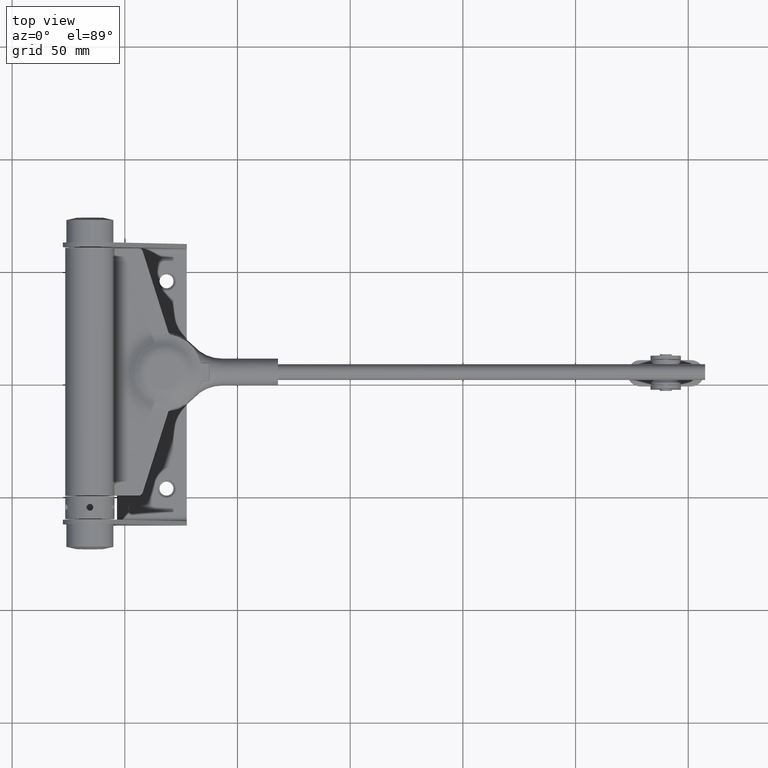
[diagram: clean part render]
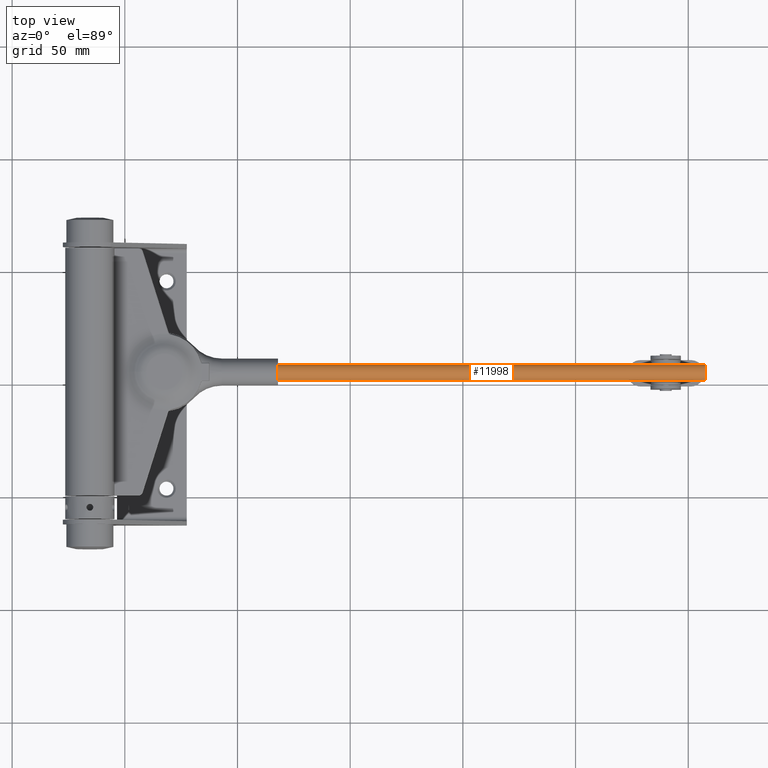
[diagram: same view with one face highlighted and labeled with its STEP entity id]
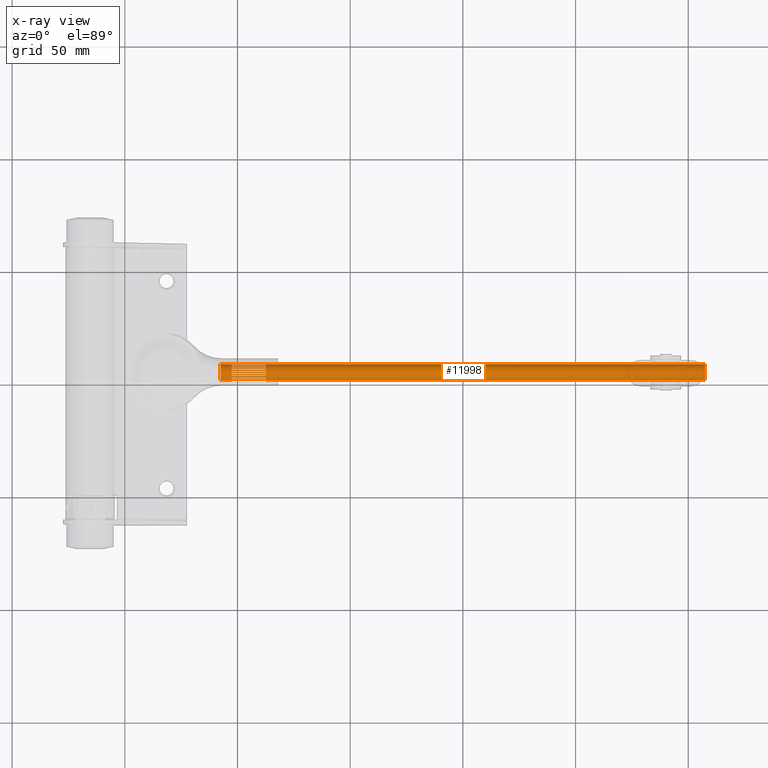
[diagram: x-ray of the same camera — body ghosted, the highlighted face saturated]
A machine part, top view. The second image highlights one B-rep face of the part: STEP entity #11998.
The next image is the same camera in x-ray: the body ghosted, the highlighted face saturated — about 0% of this face is hidden behind the body in this view.
In plain terms, the highlighted cylindrical surface (bore or boss wall) has radius 3.5 mm, axis along (-1, -0, -0).
Its self-contained STEP definition (entity closure, byte-faithful):
#15 = EDGE_CURVE ( 'NONE', #11448, #12690, #16487, .T. ) ;
#62 = LINE ( 'NONE', #4453, #2314 ) ;
#64 = CARTESIAN_POINT ( 'NONE',  ( 0.000000000000000000, 0.000000000000000000, -87.40000000000082991 ) ) ;
#102 = CIRCLE ( 'NONE', #21626, 3.500000000000047073 ) ;
#145 = FACE_BOUND ( 'NONE', #22399, .T. ) ;
#192 = EDGE_LOOP ( 'NONE', ( #1691, #347, #5508, #10158 ) ) ;
#209 = CARTESIAN_POINT ( 'NONE',  ( 3.467335518815707562, -0.4770580677017606797, -87.40000000000082991 ) ) ;
#284 = CIRCLE ( 'NONE', #7661, 3.500000000000047073 ) ;
#302 = CIRCLE ( 'NONE', #23208, 3.500000000000047073 ) ;
#303 = CARTESIAN_POINT ( 'NONE',  ( 0.2584009039698839660, -3.490448248123377173, -87.50000000000082423 ) ) ;
#318 = DIRECTION ( 'NONE',  ( -1.000000000000000000, -6.572520305780989828E-14, 0.000000000000000000 ) ) ;
#339 = VERTEX_POINT ( 'NONE', #21896 ) ;
#347 = ORIENTED_EDGE ( 'NONE', *, *, #483, .T. ) ;
#421 = VECTOR ( 'NONE', #13515, 1000.000000000000000 ) ;
#429 = CIRCLE ( 'NONE', #21882, 3.500000000000047073 ) ;
#446 = CARTESIAN_POINT ( 'NONE',  ( -3.085541056604097054, -1.652100598635302120, -102.6000000000010459 ) ) ;
#483 = EDGE_CURVE ( 'NONE', #10477, #1351, #1466, .T. ) ;
#514 = LINE ( 'NONE', #8953, #11162 ) ;
#577 = AXIS2_PLACEMENT_3D ( 'NONE', #616, #4272, #18811 ) ;
#580 = ORIENTED_EDGE ( 'NONE', *, *, #6989, .F. ) ;
#616 = CARTESIAN_POINT ( 'NONE',  ( 0.000000000000000000, 0.000000000000000000, -102.6000000000010459 ) ) ;
#650 = CARTESIAN_POINT ( 'NONE',  ( -3.239763280480197682, -1.324361690193493146, -87.50000000000082423 ) ) ;
#729 = CARTESIAN_POINT ( 'NONE',  ( 1.118321945386264282, -3.316527706271678699, -102.6000000000010459 ) ) ;
#766 = DIRECTION ( 'NONE',  ( -2.465190328815629049E-32, -3.875939235900051466E-29, -1.000000000000000000 ) ) ;
#778 = CIRCLE ( 'NONE', #1356, 3.500000000000047073 ) ;
#800 = DIRECTION ( 'NONE',  ( -2.465190328815629049E-32, -3.875939235900051466E-29, -1.000000000000000000 ) ) ;
#842 = VERTEX_POINT ( 'NONE', #22971 ) ;
#858 = DIRECTION ( 'NONE',  ( 2.465190328815629049E-32, 3.875939235900051466E-29, 1.000000000000000000 ) ) ;
#875 = CARTESIAN_POINT ( 'NONE',  ( -2.854147533565758899, 2.025794129876111516, -87.40000000000082991 ) ) ;
#961 = VERTEX_POINT ( 'NONE', #12146 ) ;
#967 = EDGE_CURVE ( 'NONE', #11366, #9857, #23385, .T. ) ;
#1033 = CARTESIAN_POINT ( 'NONE',  ( 3.500000000000150990, -8.559140821647978089E-28, -107.5000000000012506 ) ) ;
#1037 = AXIS2_PLACEMENT_3D ( 'NONE', #2224, #11262, #16719 ) ;
#1045 = CARTESIAN_POINT ( 'NONE',  ( 3.085541056604110821, -1.652100598635272588, -87.50000000000082423 ) ) ;
#1074 = EDGE_LOOP ( 'NONE', ( #2588, #12299, #7090, #18878 ) ) ;
#1077 = CIRCLE ( 'NONE', #8849, 3.500000000000047073 ) ;
#1111 = CARTESIAN_POINT ( 'NONE',  ( -2.201010094355342783, -2.721314859501912764, -87.50000000000082423 ) ) ;
#1133 = CARTESIAN_POINT ( 'NONE',  ( -2.260684726810489042, 2.671947710185519131, -102.6000000000010459 ) ) ;
#1160 = CARTESIAN_POINT ( 'NONE',  ( 2.854147533565824624, 2.025794129876150595, -102.6000000000012591 ) ) ;
#1161 = VERTEX_POINT ( 'NONE', #22805 ) ;
#1163 = CIRCLE ( 'NONE', #20777, 3.500000000000047073 ) ;
#1193 = DIRECTION ( 'NONE',  ( -2.465190328815629049E-32, -3.875939235900051466E-29, -1.000000000000000000 ) ) ;
#1236 = CARTESIAN_POINT ( 'NONE',  ( -0.2584009039698319521, -3.490448248123393604, -102.6000000000010459 ) ) ;
#1254 = VECTOR ( 'NONE', #14854, 1000.000000000000000 ) ;
#1260 = EDGE_LOOP ( 'NONE', ( #2819, #15144, #14358, #2831 ) ) ;
#1271 = DIRECTION ( 'NONE',  ( 2.465190328815629049E-32, 3.875939235900051466E-29, 1.000000000000000000 ) ) ;
#1318 = DIRECTION ( 'NONE',  ( -1.000000000000000000, -1.278976924368194723E-13, 0.000000000000000000 ) ) ;
#1351 = VERTEX_POINT ( 'NONE', #19495 ) ;
#1356 = AXIS2_PLACEMENT_3D ( 'NONE', #16991, #18860, #11206 ) ;
#1374 = EDGE_LOOP ( 'NONE', ( #13788, #12170, #10793, #5454 ) ) ;
#1392 = CIRCLE ( 'NONE', #22661, 3.500000000000047073 ) ;
#1404 = CARTESIAN_POINT ( 'NONE',  ( 0.000000000000000000, 0.000000000000000000, -87.40000000000082991 ) ) ;
#1409 = ORIENTED_EDGE ( 'NONE', *, *, #4310, .T. ) ;
#1429 = VERTEX_POINT ( 'NONE', #21953 ) ;
#1466 = CIRCLE ( 'NONE', #9117, 3.500000000000047073 ) ;
#1470 = CARTESIAN_POINT ( 'NONE',  ( 1.907974706073567450, -2.934217531299224024, -102.6000000000012591 ) ) ;
#1485 = EDGE_LOOP ( 'NONE', ( #7259, #19575, #19936, #2613 ) ) ;
#1489 = DIRECTION ( 'NONE',  ( -1.000000000000000000, 5.595524044110887414E-14, 0.000000000000000000 ) ) ;
#1494 = LINE ( 'NONE', #20947, #8618 ) ;
#1523 = CARTESIAN_POINT ( 'NONE',  ( 1.842583281463670231, 2.975716191250626252, -87.50000000000082423 ) ) ;
#1560 = DIRECTION ( 'NONE',  ( -1.000000000000000000, 2.445468806185103862E-28, 0.000000000000000000 ) ) ;
#1575 = FACE_BOUND ( 'NONE', #13847, .T. ) ;
#1582 = VECTOR ( 'NONE', #14490, 1000.000000000000000 ) ;
#1643 = EDGE_LOOP ( 'NONE', ( #4473 ) ) ;
#1691 = ORIENTED_EDGE ( 'NONE', *, *, #2321, .T. ) ;
#1743 = VERTEX_POINT ( 'NONE', #5448 ) ;
#1780 = VECTOR ( 'NONE', #766, 1000.000000000000000 ) ;
#1796 = AXIS2_PLACEMENT_3D ( 'NONE', #20846, #6282, #18773 ) ;
#1818 = CARTESIAN_POINT ( 'NONE',  ( 0.000000000000000000, 0.000000000000000000, -102.6000000000010459 ) ) ;
#1860 = ORIENTED_EDGE ( 'NONE', *, *, #2547, .F. ) ;
#1877 = VERTEX_POINT ( 'NONE', #446 ) ;
#1883 = CARTESIAN_POINT ( 'NONE',  ( -3.085541056603993137, -1.652100598635302120, -87.40000000000082991 ) ) ;
#1893 = ORIENTED_EDGE ( 'NONE', *, *, #18761, .T. ) ;
#1931 = VECTOR ( 'NONE', #21520, 1000.000000000000000 ) ;
#1938 = CARTESIAN_POINT ( 'NONE',  ( -3.399463821857268364, -0.8328539631193226933, -87.40000000000082991 ) ) ;
#1970 = DIRECTION ( 'NONE',  ( -2.465190328815629049E-32, -3.875939235900051466E-29, -1.000000000000000000 ) ) ;
#1994 = EDGE_LOOP ( 'NONE', ( #17695, #12008, #16363, #2673 ) ) ;
#1995 = VERTEX_POINT ( 'NONE', #9567 ) ;
#1999 = DIRECTION ( 'NONE',  ( -2.465190328815629049E-32, -3.875939235900051466E-29, -1.000000000000000000 ) ) ;
#2007 = EDGE_CURVE ( 'NONE', #22257, #14265, #9141, .T. ) ;
#2020 = CARTESIAN_POINT ( 'NONE',  ( 3.239763280480270513, -1.324361690193447627, -102.6000000000012591 ) ) ;
#2054 = LINE ( 'NONE', #8833, #13078 ) ;
#2059 = DIRECTION ( 'NONE',  ( -2.465190328815629049E-32, -3.875939235900051466E-29, -1.000000000000000000 ) ) ;
#2083 = CIRCLE ( 'NONE', #15297, 3.500000000000047073 ) ;
#2108 = VECTOR ( 'NONE', #15409, 1000.000000000000000 ) ;
#2174 = DIRECTION ( 'NONE',  ( -1.000000000000000000, 6.039613253960955078E-14, 0.000000000000000000 ) ) ;
#2224 = CARTESIAN_POINT ( 'NONE',  ( 0.000000000000000000, 0.000000000000000000, -102.6000000000010459 ) ) ;
#2250 = VECTOR ( 'NONE', #21749, 1000.000000000000000 ) ;
#2290 = EDGE_CURVE ( 'NONE', #11684, #1877, #14819, .T. ) ;
#2314 = VECTOR ( 'NONE', #17537, 1000.000000000000000 ) ;
#2320 = EDGE_CURVE ( 'NONE', #16935, #5998, #16812, .T. ) ;
#2321 = EDGE_CURVE ( 'NONE', #16702, #10477, #22274, .T. ) ;
#2477 = ORIENTED_EDGE ( 'NONE', *, *, #21365, .T. ) ;
#2483 = DIRECTION ( 'NONE',  ( 2.465190328815629049E-32, 3.875939235900051466E-29, 1.000000000000000000 ) ) ;
#2502 = CARTESIAN_POINT ( 'NONE',  ( 2.524725663239499873, 2.423996766784171086, -87.50000000000082423 ) ) ;
#2507 = ORIENTED_EDGE ( 'NONE', *, *, #23365, .F. ) ;
#2518 = CARTESIAN_POINT ( 'NONE',  ( 1.455097829517248975, -3.183188701056596237, -87.40000000000082991 ) ) ;
#2543 = EDGE_CURVE ( 'NONE', #10635, #22257, #12663, .T. ) ;
#2547 = EDGE_CURVE ( 'NONE', #5993, #8328, #17244, .T. ) ;
#2560 = CARTESIAN_POINT ( 'NONE',  ( -2.854147533565710493, 2.025794129876111516, -102.6000000000010459 ) ) ;
#2572 = VERTEX_POINT ( 'NONE', #6798 ) ;
#2588 = ORIENTED_EDGE ( 'NONE', *, *, #14209, .T. ) ;
#2613 = ORIENTED_EDGE ( 'NONE', *, *, #20827, .T. ) ;
#2661 = ORIENTED_EDGE ( 'NONE', *, *, #5530, .T. ) ;
#2673 = ORIENTED_EDGE ( 'NONE', *, *, #7023, .T. ) ;
#2684 = CIRCLE ( 'NONE', #10118, 3.500000000000047073 ) ;
#2730 = VECTOR ( 'NONE', #8713, 1000.000000000000000 ) ;
#2752 = CARTESIAN_POINT ( 'NONE',  ( 1.842583281463670231, 2.975716191250626252, -87.40000000000082991 ) ) ;
#2767 = DIRECTION ( 'NONE',  ( -1.000000000000000000, 2.445468806185103862E-28, 0.000000000000000000 ) ) ;
#2819 = ORIENTED_EDGE ( 'NONE', *, *, #9056, .T. ) ;
#2831 = ORIENTED_EDGE ( 'NONE', *, *, #8584, .T. ) ;
#2851 = VERTEX_POINT ( 'NONE', #14341 ) ;
#2879 = EDGE_LOOP ( 'NONE', ( #7551, #17017, #16985, #7626 ) ) ;
#2943 = CARTESIAN_POINT ( 'NONE',  ( 3.085541056604110821, -1.652100598635272588, -87.40000000000082991 ) ) ;
#2955 = DIRECTION ( 'NONE',  ( -1.000000000000000000, -5.506706202140824403E-14, 0.000000000000000000 ) ) ;
#2981 = DIRECTION ( 'NONE',  ( -1.000000000000000000, 5.329070518200846057E-14, 0.000000000000000000 ) ) ;
#2989 = CIRCLE ( 'NONE', #22881, 3.500000000000047073 ) ;
#2994 = DIRECTION ( 'NONE',  ( -2.465190328815629049E-32, -3.875939235900051466E-29, -1.000000000000000000 ) ) ;
#3012 = AXIS2_PLACEMENT_3D ( 'NONE', #17763, #14074, #23028 ) ;
#3037 = VECTOR ( 'NONE', #6493, 1000.000000000000000 ) ;
#3068 = CARTESIAN_POINT ( 'NONE',  ( -3.048230246302605639, 1.719968710624101726, -102.6000000000010459 ) ) ;
#3074 = VERTEX_POINT ( 'NONE', #11081 ) ;
#3082 = EDGE_CURVE ( 'NONE', #22468, #18417, #14282, .T. ) ;
#3108 = CARTESIAN_POINT ( 'NONE',  ( 2.201010094355432933, -2.721314859501879901, -102.6000000000012591 ) ) ;
#3142 = VERTEX_POINT ( 'NONE', #16055 ) ;
#3147 = CARTESIAN_POINT ( 'NONE',  ( 2.524725663239499873, 2.423996766784171086, -102.6000000000012591 ) ) ;
#3170 = DIRECTION ( 'NONE',  ( -2.465190328815629049E-32, -3.875939235900051466E-29, -1.000000000000000000 ) ) ;
#3181 = CARTESIAN_POINT ( 'NONE',  ( 0.1811058298647159892, 3.495311241991049478, -102.6000000000010459 ) ) ;
#3195 = CARTESIAN_POINT ( 'NONE',  ( -1.455097829517155272, -3.183188701056617109, -87.50000000000082423 ) ) ;
#3202 = ORIENTED_EDGE ( 'NONE', *, *, #9872, .T. ) ;
#3203 = LINE ( 'NONE', #18424, #20018 ) ;
#3221 = CARTESIAN_POINT ( 'NONE',  ( 0.000000000000000000, 0.000000000000000000, 107.5000000000016485 ) ) ;
#3257 = DIRECTION ( 'NONE',  ( -2.465190328815629049E-32, -3.875939235900051466E-29, -1.000000000000000000 ) ) ;
#3287 = DIRECTION ( 'NONE',  ( 2.465190328815629049E-32, 3.875939235900051466E-29, 1.000000000000000000 ) ) ;
#3343 = VECTOR ( 'NONE', #7677, 1000.000000000000000 ) ;
#3378 = DIRECTION ( 'NONE',  ( -2.465190328815629049E-32, -3.875939235900051466E-29, -1.000000000000000000 ) ) ;
#3384 = CARTESIAN_POINT ( 'NONE',  ( 0.6177564165749729330, -3.445051089574797221, -87.40000000000082991 ) ) ;
#3395 = DIRECTION ( 'NONE',  ( -1.000000000000000000, 2.445468806185103862E-28, 0.000000000000000000 ) ) ;
#3400 = CARTESIAN_POINT ( 'NONE',  ( 0.000000000000000000, 0.000000000000000000, -87.40000000000082991 ) ) ;
#3416 = CARTESIAN_POINT ( 'NONE',  ( -3.380203312383877279, 0.9078686947731349210, -102.6000000000010459 ) ) ;
#3462 = ORIENTED_EDGE ( 'NONE', *, *, #3082, .T. ) ;
#3520 = CIRCLE ( 'NONE', #5926, 3.500000000000047073 ) ;
#3579 = EDGE_LOOP ( 'NONE', ( #19461, #4346, #1860, #11419 ) ) ;
#3583 = CIRCLE ( 'NONE', #12950, 3.500000000000047073 ) ;
#3599 = CIRCLE ( 'NONE', #12845, 3.500000000000047073 ) ;
#3762 = DIRECTION ( 'NONE',  ( 2.465190328815629049E-32, 3.875939235900051466E-29, 1.000000000000000000 ) ) ;
#3794 = VERTEX_POINT ( 'NONE', #20401 ) ;
#3808 = FACE_BOUND ( 'NONE', #1260, .T. ) ;
#3825 = ORIENTED_EDGE ( 'NONE', *, *, #14045, .T. ) ;
#3857 = CARTESIAN_POINT ( 'NONE',  ( -0.6177564165749209746, -3.445051089574806102, -87.40000000000082991 ) ) ;
#3885 = VERTEX_POINT ( 'NONE', #5828 ) ;
#3890 = CARTESIAN_POINT ( 'NONE',  ( -2.808624800216295014, -2.088450797028739814, -102.6000000000010459 ) ) ;
#3898 = DIRECTION ( 'NONE',  ( -1.000000000000000000, 2.445468806185103862E-28, 0.000000000000000000 ) ) ;
#3930 = CARTESIAN_POINT ( 'NONE',  ( -0.2584009039698319521, -3.490448248123393604, -87.50000000000082423 ) ) ;
#3969 = CIRCLE ( 'NONE', #21984, 3.500000000000047073 ) ;
#3973 = CARTESIAN_POINT ( 'NONE',  ( -3.477042314535893297, 0.4002208676804133725, -87.40000000000082991 ) ) ;
#4058 = CIRCLE ( 'NONE', #15152, 3.500000000000047073 ) ;
#4062 = ORIENTED_EDGE ( 'NONE', *, *, #19859, .T. ) ;
#4066 = VECTOR ( 'NONE', #22797, 1000.000000000000000 ) ;
#4072 = CARTESIAN_POINT ( 'NONE',  ( 3.399463821857386048, -0.8328539631192628523, -102.6000000000012591 ) ) ;
#4106 = CARTESIAN_POINT ( 'NONE',  ( 0.6177564165749729330, -3.445051089574797221, -102.6000000000010459 ) ) ;
#4138 = DIRECTION ( 'NONE',  ( -2.465190328815629049E-32, -3.875939235900051466E-29, -1.000000000000000000 ) ) ;
#4165 = EDGE_CURVE ( 'NONE', #7416, #22919, #8217, .T. ) ;
#4199 = VERTEX_POINT ( 'NONE', #10262 ) ;
#4207 = VERTEX_POINT ( 'NONE', #6703 ) ;
#4244 = CARTESIAN_POINT ( 'NONE',  ( 3.268273753966800754, 1.252352454036956386, -102.6000000000012591 ) ) ;
#4266 = CARTESIAN_POINT ( 'NONE',  ( 0.000000000000000000, 0.000000000000000000, -87.40000000000082991 ) ) ;
#4272 = DIRECTION ( 'NONE',  ( -2.465190328815629049E-32, -3.875939235900051466E-29, -1.000000000000000000 ) ) ;
#4278 = CARTESIAN_POINT ( 'NONE',  ( 0.000000000000000000, 0.000000000000000000, -87.40000000000082991 ) ) ;
#4287 = VERTEX_POINT ( 'NONE', #1470 ) ;
#4291 = CARTESIAN_POINT ( 'NONE',  ( 3.467335518815707562, -0.4770580677017606797, -87.50000000000082423 ) ) ;
#4310 = EDGE_CURVE ( 'NONE', #12080, #18470, #7320, .T. ) ;
#4312 = EDGE_CURVE ( 'NONE', #4412, #4207, #14665, .T. ) ;
#4338 = CARTESIAN_POINT ( 'NONE',  ( 2.201010094355481339, -2.721314859501879901, -87.50000000000082423 ) ) ;
#4346 = ORIENTED_EDGE ( 'NONE', *, *, #11715, .T. ) ;
#4366 = VERTEX_POINT ( 'NONE', #12902 ) ;
#4376 = ORIENTED_EDGE ( 'NONE', *, *, #2290, .T. ) ;
#4393 = FACE_BOUND ( 'NONE', #3579, .T. ) ;
#4407 = AXIS2_PLACEMENT_3D ( 'NONE', #6958, #10766, #10532 ) ;
#4412 = VERTEX_POINT ( 'NONE', #7160 ) ;
#4424 = VERTEX_POINT ( 'NONE', #21740 ) ;
#4431 = CARTESIAN_POINT ( 'NONE',  ( 2.577742398938251522, -2.367539677538029963, -87.40000000000082991 ) ) ;
#4435 = DIRECTION ( 'NONE',  ( 2.465190328815629049E-32, 3.875939235900051466E-29, 1.000000000000000000 ) ) ;
#4436 = DIRECTION ( 'NONE',  ( -2.465190328815629049E-32, -3.875939235900051466E-29, -1.000000000000000000 ) ) ;
#4453 = CARTESIAN_POINT ( 'NONE',  ( 3.239763280480315810, -1.324361690193447627, -87.50000000000082423 ) ) ;
#4470 = LINE ( 'NONE', #5674, #9308 ) ;
#4473 = ORIENTED_EDGE ( 'NONE', *, *, #23008, .T. ) ;
#4479 = VECTOR ( 'NONE', #6782, 1000.000000000000000 ) ;
#4492 = CARTESIAN_POINT ( 'NONE',  ( -3.085541056603993137, -1.652100598635302120, -87.50000000000082423 ) ) ;
#4516 = CARTESIAN_POINT ( 'NONE',  ( -1.907974706073473747, -2.934217531299251558, -87.50000000000082423 ) ) ;
#4526 = ORIENTED_EDGE ( 'NONE', *, *, #20686, .F. ) ;
#4669 = CARTESIAN_POINT ( 'NONE',  ( 1.040834085586084257E-13, 0.000000000000000000, -107.5000000000012506 ) ) ;
#4673 = FACE_BOUND ( 'NONE', #23164, .T. ) ;
#4699 = ORIENTED_EDGE ( 'NONE', *, *, #11883, .T. ) ;
#4817 = DIRECTION ( 'NONE',  ( -2.465190328815629049E-32, -3.875939235900051466E-29, -1.000000000000000000 ) ) ;
#4831 = DIRECTION ( 'NONE',  ( -2.465190328815629049E-32, -3.875939235900051466E-29, -1.000000000000000000 ) ) ;
#4839 = DIRECTION ( 'NONE',  ( -1.000000000000000000, 2.445468806185103862E-28, 0.000000000000000000 ) ) ;
#4848 = AXIS2_PLACEMENT_3D ( 'NONE', #8629, #12211, #5042 ) ;
#4850 = CARTESIAN_POINT ( 'NONE',  ( 3.500000000000047073, -8.559140821647978089E-28, 107.5000000000016485 ) ) ;
#4865 = AXIS2_PLACEMENT_3D ( 'NONE', #5968, #19017, #9851 ) ;
#4875 = DIRECTION ( 'NONE',  ( 2.465190328815629049E-32, 3.875939235900051466E-29, 1.000000000000000000 ) ) ;
#4904 = CARTESIAN_POINT ( 'NONE',  ( 3.380203312383908809, 0.9078686947731956502, -87.50000000000082423 ) ) ;
#4926 = DIRECTION ( 'NONE',  ( -2.465190328815629049E-32, -3.875939235900051466E-29, -1.000000000000000000 ) ) ;
#4941 = VERTEX_POINT ( 'NONE', #23407 ) ;
#4975 = VECTOR ( 'NONE', #21727, 1000.000000000000000 ) ;
#5006 = CARTESIAN_POINT ( 'NONE',  ( 3.499785772829926866, 0.03872394992213493148, -87.50000000000082423 ) ) ;
#5027 = CIRCLE ( 'NONE', #13628, 3.500000000000047073 ) ;
#5042 = DIRECTION ( 'NONE',  ( 1.000000000000000000, -2.445468806185103862E-28, 0.000000000000000000 ) ) ;
#5063 = CARTESIAN_POINT ( 'NONE',  ( -3.467335518815648499, -0.4770580677018214089, -87.50000000000082423 ) ) ;
#5086 = DIRECTION ( 'NONE',  ( -2.465190328815629049E-32, -3.875939235900051466E-29, -1.000000000000000000 ) ) ;
#5093 = CARTESIAN_POINT ( 'NONE',  ( -2.524725663239486106, 2.423996766784132895, -87.40000000000082991 ) ) ;
#5106 = DIRECTION ( 'NONE',  ( -1.000000000000000000, -2.309263891220331599E-14, 0.000000000000000000 ) ) ;
#5116 = CARTESIAN_POINT ( 'NONE',  ( 3.477042314535938594, 0.4002208676804767107, -87.50000000000082423 ) ) ;
#5135 = LINE ( 'NONE', #5063, #22198 ) ;
#5148 = CARTESIAN_POINT ( 'NONE',  ( -1.118321945386167249, -3.316527706271681364, -102.6000000000010459 ) ) ;
#5165 = DIRECTION ( 'NONE',  ( 2.465190328815629049E-32, 3.875939235900051466E-29, 1.000000000000000000 ) ) ;
#5181 = EDGE_CURVE ( 'NONE', #842, #11432, #16265, .T. ) ;
#5187 = EDGE_CURVE ( 'NONE', #18950, #16035, #2083, .T. ) ;
#5188 = EDGE_LOOP ( 'NONE', ( #3462, #23042, #6765, #17157 ) ) ;
#5226 = VERTEX_POINT ( 'NONE', #4106 ) ;
#5229 = FACE_OUTER_BOUND ( 'NONE', #13916, .T. ) ;
#5243 = LINE ( 'NONE', #4291, #421 ) ;
#5253 = FACE_BOUND ( 'NONE', #11867, .T. ) ;
#5254 = CARTESIAN_POINT ( 'NONE',  ( 2.854147533565776218, 2.025794129876150595, -87.50000000000082423 ) ) ;
#5448 = CARTESIAN_POINT ( 'NONE',  ( 3.467335518815763074, -0.4770580677017606797, -102.6000000000012591 ) ) ;
#5454 = ORIENTED_EDGE ( 'NONE', *, *, #7253, .T. ) ;
#5455 = EDGE_CURVE ( 'NONE', #11154, #16413, #1392, .T. ) ;
#5461 = VERTEX_POINT ( 'NONE', #18066 ) ;
#5497 = CARTESIAN_POINT ( 'NONE',  ( -2.260684726810489042, 2.671947710185519131, -87.50000000000082423 ) ) ;
#5508 = ORIENTED_EDGE ( 'NONE', *, *, #9419, .F. ) ;
#5510 = CARTESIAN_POINT ( 'NONE',  ( 0.000000000000000000, 0.000000000000000000, -102.6000000000010459 ) ) ;
#5530 = EDGE_CURVE ( 'NONE', #23170, #19218, #15257, .T. ) ;
#5592 = VERTEX_POINT ( 'NONE', #17159 ) ;
#5635 = CARTESIAN_POINT ( 'NONE',  ( 0.000000000000000000, 0.000000000000000000, -87.40000000000082991 ) ) ;
#5649 = ORIENTED_EDGE ( 'NONE', *, *, #7427, .T. ) ;
#5674 = CARTESIAN_POINT ( 'NONE',  ( 1.118321945386264282, -3.316527706271678699, -87.50000000000082423 ) ) ;
#5707 = CARTESIAN_POINT ( 'NONE',  ( 3.380203312383908809, 0.9078686947731956502, -87.40000000000082991 ) ) ;
#5739 = CARTESIAN_POINT ( 'NONE',  ( -3.048230246302710000, 1.719968710624101726, -87.40000000000082991 ) ) ;
#5750 = CIRCLE ( 'NONE', #8397, 3.500000000000047073 ) ;
#5786 = FACE_BOUND ( 'NONE', #13930, .T. ) ;
#5828 = CARTESIAN_POINT ( 'NONE',  ( -1.455097829517148389, -3.183188701056617109, -102.6000000000010459 ) ) ;
#5878 = ORIENTED_EDGE ( 'NONE', *, *, #22043, .F. ) ;
#5926 = AXIS2_PLACEMENT_3D ( 'NONE', #20661, #4435, #8093 ) ;
#5927 = CARTESIAN_POINT ( 'NONE',  ( 3.499785772829926866, 0.03872394992213493148, -87.40000000000082991 ) ) ;
#5936 = ORIENTED_EDGE ( 'NONE', *, *, #17512, .T. ) ;
#5937 = EDGE_CURVE ( 'NONE', #14449, #16225, #3599, .T. ) ;
#5968 = CARTESIAN_POINT ( 'NONE',  ( 0.000000000000000000, 0.000000000000000000, -87.40000000000082991 ) ) ;
#5976 = EDGE_CURVE ( 'NONE', #15757, #16702, #20987, .T. ) ;
#5993 = VERTEX_POINT ( 'NONE', #16467 ) ;
#5996 = DIRECTION ( 'NONE',  ( -1.000000000000000000, 1.332267629550229974E-14, 0.000000000000000000 ) ) ;
#5998 = VERTEX_POINT ( 'NONE', #5093 ) ;
#6006 = DIRECTION ( 'NONE',  ( -1.000000000000000000, -3.730349362740549957E-14, 0.000000000000000000 ) ) ;
#6033 = CARTESIAN_POINT ( 'NONE',  ( 1.455097829517248975, -3.183188701056596237, -102.6000000000012591 ) ) ;
#6061 = DIRECTION ( 'NONE',  ( -2.465190328815629049E-32, -3.875939235900051466E-29, -1.000000000000000000 ) ) ;
#6068 = LINE ( 'NONE', #1111, #4066 ) ;
#6082 = CARTESIAN_POINT ( 'NONE',  ( 3.268273753966752349, 1.252352454036956386, -87.50000000000082423 ) ) ;
#6163 = VECTOR ( 'NONE', #6171, 1000.000000000000000 ) ;
#6171 = DIRECTION ( 'NONE',  ( -2.465190328815629049E-32, -3.875939235900051466E-29, -1.000000000000000000 ) ) ;
#6245 = DIRECTION ( 'NONE',  ( -1.000000000000000000, -3.552713678800523017E-14, 0.000000000000000000 ) ) ;
#6278 = DIRECTION ( 'NONE',  ( -1.000000000000000000, 2.445468806185103862E-28, 0.000000000000000000 ) ) ;
#6282 = DIRECTION ( 'NONE',  ( -2.465190328815629049E-32, -3.875939235900051466E-29, -1.000000000000000000 ) ) ;
#6361 = CARTESIAN_POINT ( 'NONE',  ( 0.6938325011875655646, 3.430538800290096724, -102.6000000000010459 ) ) ;
#6393 = FACE_BOUND ( 'NONE', #23128, .T. ) ;
#6421 = CARTESIAN_POINT ( 'NONE',  ( 0.000000000000000000, 0.000000000000000000, -102.6000000000010459 ) ) ;
#6492 = DIRECTION ( 'NONE',  ( -2.465190328815629049E-32, -3.875939235900051466E-29, -1.000000000000000000 ) ) ;
#6493 = DIRECTION ( 'NONE',  ( -2.465190328815629049E-32, -3.875939235900051466E-29, -1.000000000000000000 ) ) ;
#6612 = LINE ( 'NONE', #17755, #6888 ) ;
#6703 = CARTESIAN_POINT ( 'NONE',  ( 2.260684726810499701, 2.671947710185577751, -102.6000000000012591 ) ) ;
#6728 = DIRECTION ( 'NONE',  ( -1.000000000000000000, -5.595524044110838189E-14, 0.000000000000000000 ) ) ;
#6750 = CARTESIAN_POINT ( 'NONE',  ( 3.085541056604065968, -1.652100598635272588, -102.6000000000012591 ) ) ;
#6765 = ORIENTED_EDGE ( 'NONE', *, *, #18654, .F. ) ;
#6782 = DIRECTION ( 'NONE',  ( -2.465190328815629049E-32, -3.875939235900051466E-29, -1.000000000000000000 ) ) ;
#6798 = CARTESIAN_POINT ( 'NONE',  ( -1.455097829517155272, -3.183188701056617109, -87.40000000000082991 ) ) ;
#6821 = VECTOR ( 'NONE', #2994, 1000.000000000000000 ) ;
#6826 = EDGE_CURVE ( 'NONE', #19162, #11787, #21192, .T. ) ;
#6888 = VECTOR ( 'NONE', #4817, 1000.000000000000000 ) ;
#6924 = EDGE_CURVE ( 'NONE', #19218, #1743, #5243, .T. ) ;
#6958 = CARTESIAN_POINT ( 'NONE',  ( 0.000000000000000000, 0.000000000000000000, -102.6000000000010459 ) ) ;
#6959 = VERTEX_POINT ( 'NONE', #875 ) ;
#6970 = DIRECTION ( 'NONE',  ( -2.465190328815629049E-32, -3.875939235900051466E-29, -1.000000000000000000 ) ) ;
#6980 = CARTESIAN_POINT ( 'NONE',  ( 2.808624800216478867, -2.088450797028700290, -87.50000000000082423 ) ) ;
#6989 = EDGE_CURVE ( 'NONE', #11366, #3794, #6068, .T. ) ;
#7023 = EDGE_CURVE ( 'NONE', #16341, #842, #16010, .T. ) ;
#7060 = DIRECTION ( 'NONE',  ( -2.465190328815629049E-32, -3.875939235900051466E-29, -1.000000000000000000 ) ) ;
#7068 = CARTESIAN_POINT ( 'NONE',  ( 2.577742398938251522, -2.367539677538029963, -87.50000000000082423 ) ) ;
#7090 = ORIENTED_EDGE ( 'NONE', *, *, #19931, .F. ) ;
#7106 = ORIENTED_EDGE ( 'NONE', *, *, #8223, .T. ) ;
#7137 = VERTEX_POINT ( 'NONE', #2518 ) ;
#7160 = CARTESIAN_POINT ( 'NONE',  ( 2.260684726810548106, 2.671947710185577751, -87.40000000000082991 ) ) ;
#7173 = CIRCLE ( 'NONE', #4848, 3.500000000000047073 ) ;
#7234 = FACE_BOUND ( 'NONE', #18262, .T. ) ;
#7252 = VECTOR ( 'NONE', #18833, 1000.000000000000000 ) ;
#7253 = EDGE_CURVE ( 'NONE', #2572, #21852, #19538, .T. ) ;
#7259 = ORIENTED_EDGE ( 'NONE', *, *, #18159, .T. ) ;
#7320 = LINE ( 'NONE', #5254, #17548 ) ;
#7379 = LINE ( 'NONE', #4516, #6821 ) ;
#7408 = DIRECTION ( 'NONE',  ( -2.465190328815629049E-32, -3.875939235900051466E-29, -1.000000000000000000 ) ) ;
#7416 = VERTEX_POINT ( 'NONE', #5927 ) ;
#7427 = EDGE_CURVE ( 'NONE', #12652, #15385, #16603, .T. ) ;
#7438 = EDGE_CURVE ( 'NONE', #10732, #11295, #16318, .T. ) ;
#7536 = LINE ( 'NONE', #15218, #17458 ) ;
#7539 = LINE ( 'NONE', #19304, #2108 ) ;
#7541 = CARTESIAN_POINT ( 'NONE',  ( -3.048230246302710000, 1.719968710624101726, -87.50000000000082423 ) ) ;
#7551 = ORIENTED_EDGE ( 'NONE', *, *, #2007, .T. ) ;
#7554 = DIRECTION ( 'NONE',  ( 2.465190328815629049E-32, 3.875939235900051466E-29, 1.000000000000000000 ) ) ;
#7559 = CARTESIAN_POINT ( 'NONE',  ( 0.000000000000000000, 0.000000000000000000, -102.6000000000010459 ) ) ;
#7572 = DIRECTION ( 'NONE',  ( -2.465190328815629049E-32, -3.875939235900051466E-29, -1.000000000000000000 ) ) ;
#7618 = EDGE_CURVE ( 'NONE', #22148, #8029, #8985, .T. ) ;
#7626 = ORIENTED_EDGE ( 'NONE', *, *, #2543, .T. ) ;
#7632 = CARTESIAN_POINT ( 'NONE',  ( 0.000000000000000000, 0.000000000000000000, -87.40000000000082991 ) ) ;
#7649 = VERTEX_POINT ( 'NONE', #3147 ) ;
#7661 = AXIS2_PLACEMENT_3D ( 'NONE', #18957, #2483, #5996 ) ;
#7672 = VERTEX_POINT ( 'NONE', #23199 ) ;
#7677 = DIRECTION ( 'NONE',  ( -2.465190328815629049E-32, -3.875939235900051466E-29, -1.000000000000000000 ) ) ;
#7681 = ORIENTED_EDGE ( 'NONE', *, *, #9163, .F. ) ;
#7712 = CARTESIAN_POINT ( 'NONE',  ( 0.000000000000000000, 0.000000000000000000, -102.6000000000010459 ) ) ;
#7770 = ORIENTED_EDGE ( 'NONE', *, *, #23118, .T. ) ;
#7836 = CARTESIAN_POINT ( 'NONE',  ( -1.525174784452885346, 3.150212989127735952, -102.6000000000010459 ) ) ;
#7872 = LINE ( 'NONE', #4904, #3037 ) ;
#7885 = AXIS2_PLACEMENT_3D ( 'NONE', #1404, #3287, #15975 ) ;
#7893 = AXIS2_PLACEMENT_3D ( 'NONE', #4266, #18969, #17018 ) ;
#7990 = VECTOR ( 'NONE', #11519, 1000.000000000000000 ) ;
#8029 = VERTEX_POINT ( 'NONE', #16820 ) ;
#8043 = VECTOR ( 'NONE', #9362, 1000.000000000000000 ) ;
#8046 = VECTOR ( 'NONE', #10018, 1000.000000000000000 ) ;
#8054 = DIRECTION ( 'NONE',  ( -2.465190328815629049E-32, -3.875939235900051466E-29, -1.000000000000000000 ) ) ;
#8078 = DIRECTION ( 'NONE',  ( 1.000000000000000000, -2.445468806185103862E-28, 0.000000000000000000 ) ) ;
#8093 = DIRECTION ( 'NONE',  ( -1.000000000000000000, 3.286260152890530886E-14, 0.000000000000000000 ) ) ;
#8121 = CIRCLE ( 'NONE', #4407, 3.500000000000047073 ) ;
#8137 = CIRCLE ( 'NONE', #15395, 3.500000000000047073 ) ;
#8143 = EDGE_CURVE ( 'NONE', #10963, #20965, #21316, .T. ) ;
#8161 = CARTESIAN_POINT ( 'NONE',  ( -1.118321945386167249, -3.316527706271681364, -87.40000000000082991 ) ) ;
#8172 = ORIENTED_EDGE ( 'NONE', *, *, #17849, .T. ) ;
#8185 = CARTESIAN_POINT ( 'NONE',  ( 3.048230246302626512, 1.719968710624158126, -87.50000000000082423 ) ) ;
#8217 = CIRCLE ( 'NONE', #17110, 3.500000000000047073 ) ;
#8223 = EDGE_CURVE ( 'NONE', #20588, #19162, #19606, .T. ) ;
#8249 = ORIENTED_EDGE ( 'NONE', *, *, #21115, .T. ) ;
#8328 = VERTEX_POINT ( 'NONE', #7836 ) ;
#8368 = AXIS2_PLACEMENT_3D ( 'NONE', #3400, #10714, #19958 ) ;
#8393 = ORIENTED_EDGE ( 'NONE', *, *, #8858, .F. ) ;
#8397 = AXIS2_PLACEMENT_3D ( 'NONE', #6421, #4436, #10064 ) ;
#8490 = LINE ( 'NONE', #4338, #3343 ) ;
#8584 = EDGE_CURVE ( 'NONE', #6959, #13296, #10472, .T. ) ;
#8601 = DIRECTION ( 'NONE',  ( -2.465190328815629049E-32, -3.875939235900051466E-29, -1.000000000000000000 ) ) ;
#8618 = VECTOR ( 'NONE', #8054, 1000.000000000000000 ) ;
#8629 = CARTESIAN_POINT ( 'NONE',  ( 0.000000000000000000, 0.000000000000000000, 107.5000000000016485 ) ) ;
#8706 = DIRECTION ( 'NONE',  ( -1.000000000000000000, 2.445468806185103862E-28, 0.000000000000000000 ) ) ;
#8713 = DIRECTION ( 'NONE',  ( -2.465190328815629049E-32, -3.875939235900051466E-29, -1.000000000000000000 ) ) ;
#8725 = CARTESIAN_POINT ( 'NONE',  ( -1.525174784452885346, 3.150212989127735952, -87.50000000000082423 ) ) ;
#8756 = AXIS2_PLACEMENT_3D ( 'NONE', #1818, #1970, #11097 ) ;
#8798 = AXIS2_PLACEMENT_3D ( 'NONE', #20815, #858, #17348 ) ;
#8833 = CARTESIAN_POINT ( 'NONE',  ( 0.1811058298648200726, 3.495311241991049478, -87.50000000000082423 ) ) ;
#8849 = AXIS2_PLACEMENT_3D ( 'NONE', #15262, #20811, #6245 ) ;
#8858 = EDGE_CURVE ( 'NONE', #23170, #16189, #11551, .T. ) ;
#8885 = CIRCLE ( 'NONE', #13163, 3.500000000000047073 ) ;
#8911 = CARTESIAN_POINT ( 'NONE',  ( -2.808624800216302120, -2.088450797028739814, -87.50000000000082423 ) ) ;
#8953 = CARTESIAN_POINT ( 'NONE',  ( 1.907974706073668036, -2.934217531299224024, -87.50000000000082423 ) ) ;
#8970 = LINE ( 'NONE', #1523, #23463 ) ;
#8985 = CIRCLE ( 'NONE', #3012, 3.500000000000047073 ) ;
#9056 = EDGE_CURVE ( 'NONE', #13296, #14449, #18715, .T. ) ;
#9117 = AXIS2_PLACEMENT_3D ( 'NONE', #7559, #1999, #3898 ) ;
#9141 = LINE ( 'NONE', #15250, #7990 ) ;
#9163 = EDGE_CURVE ( 'NONE', #5592, #22230, #15517, .T. ) ;
#9206 = AXIS2_PLACEMENT_3D ( 'NONE', #4669, #1271, #8078 ) ;
#9220 = LINE ( 'NONE', #23284, #19747 ) ;
#9232 = VERTEX_POINT ( 'NONE', #21465 ) ;
#9242 = ORIENTED_EDGE ( 'NONE', *, *, #23333, .T. ) ;
#9257 = DIRECTION ( 'NONE',  ( -1.000000000000000000, 2.445468806185103862E-28, 0.000000000000000000 ) ) ;
#9277 = LINE ( 'NONE', #21335, #16337 ) ;
#9308 = VECTOR ( 'NONE', #16357, 1000.000000000000000 ) ;
#9362 = DIRECTION ( 'NONE',  ( -2.465190328815629049E-32, -3.875939235900051466E-29, -1.000000000000000000 ) ) ;
#9369 = CIRCLE ( 'NONE', #9632, 3.500000000000047073 ) ;
#9409 = CARTESIAN_POINT ( 'NONE',  ( -3.399463821857268364, -0.8328539631193226933, -87.50000000000082423 ) ) ;
#9419 = EDGE_CURVE ( 'NONE', #15757, #1351, #7872, .T. ) ;
#9474 = CARTESIAN_POINT ( 'NONE',  ( 2.808624800216378503, -2.088450797028700290, -102.6000000000012591 ) ) ;
#9511 = FACE_BOUND ( 'NONE', #15939, .T. ) ;
#9523 = EDGE_CURVE ( 'NONE', #961, #339, #12944, .T. ) ;
#9540 = CIRCLE ( 'NONE', #10931, 3.500000000000047073 ) ;
#9552 = VECTOR ( 'NONE', #15500, 1000.000000000000000 ) ;
#9567 = CARTESIAN_POINT ( 'NONE',  ( 2.201010094355481339, -2.721314859501879901, -87.40000000000082991 ) ) ;
#9596 = CARTESIAN_POINT ( 'NONE',  ( -1.842583281463566092, 2.975716191250601828, -87.40000000000082991 ) ) ;
#9627 = CARTESIAN_POINT ( 'NONE',  ( -3.239763280480308705, -1.324361690193493146, -102.6000000000010459 ) ) ;
#9632 = AXIS2_PLACEMENT_3D ( 'NONE', #23250, #12302, #18208 ) ;
#9645 = DIRECTION ( 'NONE',  ( -2.465190328815629049E-32, -3.875939235900051466E-29, -1.000000000000000000 ) ) ;
#9851 = DIRECTION ( 'NONE',  ( -1.000000000000000000, 1.953992523340325683E-14, 0.000000000000000000 ) ) ;
#9857 = VERTEX_POINT ( 'NONE', #23368 ) ;
#9872 = EDGE_CURVE ( 'NONE', #4424, #5461, #11251, .T. ) ;
#9898 = CARTESIAN_POINT ( 'NONE',  ( -2.577742398938067669, -2.367539677538065490, -87.40000000000082991 ) ) ;
#9901 = AXIS2_PLACEMENT_3D ( 'NONE', #13961, #17817, #2955 ) ;
#10018 = DIRECTION ( 'NONE',  ( -2.465190328815629049E-32, -3.875939235900051466E-29, -1.000000000000000000 ) ) ;
#10064 = DIRECTION ( 'NONE',  ( -1.000000000000000000, 2.445468806185103862E-28, 0.000000000000000000 ) ) ;
#10072 = AXIS2_PLACEMENT_3D ( 'NONE', #64, #3762, #2174 ) ;
#10081 = EDGE_CURVE ( 'NONE', #17281, #7649, #23501, .T. ) ;
#10086 = EDGE_CURVE ( 'NONE', #16035, #5226, #20388, .T. ) ;
#10090 = CIRCLE ( 'NONE', #23393, 3.500000000000047073 ) ;
#10097 = CARTESIAN_POINT ( 'NONE',  ( 0.000000000000000000, 0.000000000000000000, -102.6000000000010459 ) ) ;
#10118 = AXIS2_PLACEMENT_3D ( 'NONE', #14451, #12475, #1560 ) ;
#10158 = ORIENTED_EDGE ( 'NONE', *, *, #5976, .T. ) ;
#10217 = DIRECTION ( 'NONE',  ( -1.000000000000000000, 2.445468806185103862E-28, 0.000000000000000000 ) ) ;
#10220 = EDGE_CURVE ( 'NONE', #22919, #4424, #19833, .T. ) ;
#10227 = ORIENTED_EDGE ( 'NONE', *, *, #7438, .T. ) ;
#10256 = EDGE_CURVE ( 'NONE', #2572, #3885, #15217, .T. ) ;
#10262 = CARTESIAN_POINT ( 'NONE',  ( -3.399463821857278578, -0.8328539631193226933, -102.6000000000010459 ) ) ;
#10283 = CARTESIAN_POINT ( 'NONE',  ( 0.000000000000000000, 0.000000000000000000, -102.6000000000010459 ) ) ;
#10358 = FACE_BOUND ( 'NONE', #14155, .T. ) ;
#10411 = DIRECTION ( 'NONE',  ( 2.465190328815629049E-32, 3.875939235900051466E-29, 1.000000000000000000 ) ) ;
#10472 = CIRCLE ( 'NONE', #9901, 3.500000000000047073 ) ;
#10477 = VERTEX_POINT ( 'NONE', #4244 ) ;
#10506 = EDGE_CURVE ( 'NONE', #18417, #3142, #3583, .T. ) ;
#10520 = VERTEX_POINT ( 'NONE', #1133 ) ;
#10522 = CARTESIAN_POINT ( 'NONE',  ( 0.000000000000000000, 0.000000000000000000, -87.40000000000082991 ) ) ;
#10526 = VERTEX_POINT ( 'NONE', #3181 ) ;
#10531 = CARTESIAN_POINT ( 'NONE',  ( -3.467335518815648499, -0.4770580677018214089, -87.40000000000082991 ) ) ;
#10532 = DIRECTION ( 'NONE',  ( -1.000000000000000000, 2.445468806185103862E-28, 0.000000000000000000 ) ) ;
#10539 = EDGE_CURVE ( 'NONE', #11295, #11047, #9277, .T. ) ;
#10635 = VERTEX_POINT ( 'NONE', #3973 ) ;
#10664 = DIRECTION ( 'NONE',  ( -2.465190328815629049E-32, -3.875939235900051466E-29, -1.000000000000000000 ) ) ;
#10673 = EDGE_CURVE ( 'NONE', #4207, #7649, #8137, .T. ) ;
#10714 = DIRECTION ( 'NONE',  ( 2.465190328815629049E-32, 3.875939235900051466E-29, 1.000000000000000000 ) ) ;
#10732 = VERTEX_POINT ( 'NONE', #13569 ) ;
#10766 = DIRECTION ( 'NONE',  ( -2.465190328815629049E-32, -3.875939235900051466E-29, -1.000000000000000000 ) ) ;
#10792 = CARTESIAN_POINT ( 'NONE',  ( -3.499785772829885122, 0.03872394992207074671, -102.6000000000010459 ) ) ;
#10793 = ORIENTED_EDGE ( 'NONE', *, *, #10256, .F. ) ;
#10797 = ORIENTED_EDGE ( 'NONE', *, *, #16379, .T. ) ;
#10820 = LINE ( 'NONE', #5006, #11913 ) ;
#10903 = VERTEX_POINT ( 'NONE', #9627 ) ;
#10931 = AXIS2_PLACEMENT_3D ( 'NONE', #22631, #19151, #11460 ) ;
#10963 = VERTEX_POINT ( 'NONE', #2943 ) ;
#11047 = VERTEX_POINT ( 'NONE', #23238 ) ;
#11077 = EDGE_CURVE ( 'NONE', #11432, #9232, #2989, .T. ) ;
#11081 = CARTESIAN_POINT ( 'NONE',  ( -2.577742398938067669, -2.367539677538065490, -102.6000000000010459 ) ) ;
#11097 = DIRECTION ( 'NONE',  ( -1.000000000000000000, 2.445468806185103862E-28, 0.000000000000000000 ) ) ;
#11140 = ORIENTED_EDGE ( 'NONE', *, *, #14607, .T. ) ;
#11154 = VERTEX_POINT ( 'NONE', #3416 ) ;
#11162 = VECTOR ( 'NONE', #3378, 1000.000000000000000 ) ;
#11206 = DIRECTION ( 'NONE',  ( -1.000000000000000000, 2.664535259100655743E-15, 0.000000000000000000 ) ) ;
#11215 = DIRECTION ( 'NONE',  ( -2.465190328815629049E-32, -3.875939235900051466E-29, -1.000000000000000000 ) ) ;
#11236 = AXIS2_PLACEMENT_3D ( 'NONE', #14281, #19920, #21685 ) ;
#11251 = CIRCLE ( 'NONE', #8756, 3.500000000000047073 ) ;
#11262 = DIRECTION ( 'NONE',  ( -2.465190328815629049E-32, -3.875939235900051466E-29, -1.000000000000000000 ) ) ;
#11295 = VERTEX_POINT ( 'NONE', #18356 ) ;
#11313 = AXIS2_PLACEMENT_3D ( 'NONE', #15050, #800, #20830 ) ;
#11345 = DIRECTION ( 'NONE',  ( -1.000000000000000000, 2.445468806185103862E-28, 0.000000000000000000 ) ) ;
#11366 = VERTEX_POINT ( 'NONE', #22644 ) ;
#11383 = EDGE_LOOP ( 'NONE', ( #22713, #17021, #2507, #11514 ) ) ;
#11400 = EDGE_CURVE ( 'NONE', #20447, #20965, #15177, .T. ) ;
#11410 = EDGE_CURVE ( 'NONE', #17812, #1429, #19232, .T. ) ;
#11419 = ORIENTED_EDGE ( 'NONE', *, *, #21947, .T. ) ;
#11432 = VERTEX_POINT ( 'NONE', #20754 ) ;
#11448 = VERTEX_POINT ( 'NONE', #6033 ) ;
#11460 = DIRECTION ( 'NONE',  ( -1.000000000000000000, 2.445468806185103862E-28, 0.000000000000000000 ) ) ;
#11514 = ORIENTED_EDGE ( 'NONE', *, *, #2320, .T. ) ;
#11519 = DIRECTION ( 'NONE',  ( -2.465190328815629049E-32, -3.875939235900051466E-29, -1.000000000000000000 ) ) ;
#11521 = DIRECTION ( 'NONE',  ( 2.465190328815629049E-32, 3.875939235900051466E-29, 1.000000000000000000 ) ) ;
#11551 = LINE ( 'NONE', #11807, #21864 ) ;
#11618 = ORIENTED_EDGE ( 'NONE', *, *, #21903, .T. ) ;
#11684 = VERTEX_POINT ( 'NONE', #1883 ) ;
#11715 = EDGE_CURVE ( 'NONE', #1429, #8328, #2684, .T. ) ;
#11719 = VECTOR ( 'NONE', #18502, 1000.000000000000000 ) ;
#11787 = VERTEX_POINT ( 'NONE', #18142 ) ;
#11807 = CARTESIAN_POINT ( 'NONE',  ( 3.399463821857382495, -0.8328539631192628523, -87.50000000000082423 ) ) ;
#11808 = VERTEX_POINT ( 'NONE', #14288 ) ;
#11817 = EDGE_CURVE ( 'NONE', #21712, #22468, #22874, .T. ) ;
#11867 = EDGE_LOOP ( 'NONE', ( #10797, #3825, #21557, #21173 ) ) ;
#11877 = DIRECTION ( 'NONE',  ( -2.465190328815629049E-32, -3.875939235900051466E-29, -1.000000000000000000 ) ) ;
#11883 = EDGE_CURVE ( 'NONE', #2851, #12652, #18036, .T. ) ;
#11913 = VECTOR ( 'NONE', #4926, 1000.000000000000000 ) ;
#11917 = EDGE_CURVE ( 'NONE', #7672, #10526, #429, .T. ) ;
#11970 = CARTESIAN_POINT ( 'NONE',  ( 2.808624800216478867, -2.088450797028700290, -87.40000000000082991 ) ) ;
#11987 = LINE ( 'NONE', #17220, #8046 ) ;
#11998 = ADVANCED_FACE ( 'NONE', ( #16042, #20919, #17457, #6393, #21200, #1575, #20335, #5253, #9511, #4673, #12589, #7234, #22306, #5229, #20055, #4393, #3808, #16022, #15150, #19182, #18013, #10358, #13125, #13410, #23175, #145, #5786 ), #17142, .T. ) ;
#12002 = DIRECTION ( 'NONE',  ( -1.000000000000000000, 2.445468806185103862E-28, 0.000000000000000000 ) ) ;
#12008 = ORIENTED_EDGE ( 'NONE', *, *, #11077, .T. ) ;
#12031 = VECTOR ( 'NONE', #4138, 1000.000000000000000 ) ;
#12080 = VERTEX_POINT ( 'NONE', #19857 ) ;
#12117 = VERTEX_POINT ( 'NONE', #10531 ) ;
#12146 = CARTESIAN_POINT ( 'NONE',  ( 0.1811058298648200726, 3.495311241991049478, -87.40000000000082991 ) ) ;
#12170 = ORIENTED_EDGE ( 'NONE', *, *, #22110, .T. ) ;
#12211 = DIRECTION ( 'NONE',  ( 2.465190328815629049E-32, 3.875939235900051466E-29, 1.000000000000000000 ) ) ;
#12266 = DIRECTION ( 'NONE',  ( -1.000000000000000000, 2.445468806185103862E-28, 0.000000000000000000 ) ) ;
#12299 = ORIENTED_EDGE ( 'NONE', *, *, #11917, .T. ) ;
#12302 = DIRECTION ( 'NONE',  ( -2.465190328815629049E-32, -3.875939235900051466E-29, -1.000000000000000000 ) ) ;
#12315 = CARTESIAN_POINT ( 'NONE',  ( 0.000000000000000000, 0.000000000000000000, -87.40000000000082991 ) ) ;
#12366 = AXIS2_PLACEMENT_3D ( 'NONE', #7712, #22275, #11345 ) ;
#12425 = AXIS2_PLACEMENT_3D ( 'NONE', #15770, #17616, #19486 ) ;
#12457 = CIRCLE ( 'NONE', #14474, 3.500000000000047073 ) ;
#12475 = DIRECTION ( 'NONE',  ( -2.465190328815629049E-32, -3.875939235900051466E-29, -1.000000000000000000 ) ) ;
#12482 = ORIENTED_EDGE ( 'NONE', *, *, #7618, .T. ) ;
#12589 = FACE_BOUND ( 'NONE', #11383, .T. ) ;
#12642 = EDGE_CURVE ( 'NONE', #4941, #10903, #16045, .T. ) ;
#12652 = VERTEX_POINT ( 'NONE', #13211 ) ;
#12663 = CIRCLE ( 'NONE', #17981, 3.500000000000047073 ) ;
#12669 = ORIENTED_EDGE ( 'NONE', *, *, #10081, .F. ) ;
#12690 = VERTEX_POINT ( 'NONE', #729 ) ;
#12774 = EDGE_CURVE ( 'NONE', #10732, #20015, #7536, .T. ) ;
#12805 = EDGE_LOOP ( 'NONE', ( #1409, #18775, #7681, #1893 ) ) ;
#12811 = LINE ( 'NONE', #20499, #8043 ) ;
#12845 = AXIS2_PLACEMENT_3D ( 'NONE', #13757, #3170, #12266 ) ;
#12902 = CARTESIAN_POINT ( 'NONE',  ( -3.477042314535893297, 0.4002208676804133725, -102.6000000000010459 ) ) ;
#12918 = EDGE_CURVE ( 'NONE', #1743, #16189, #10090, .T. ) ;
#12944 = CIRCLE ( 'NONE', #10072, 3.500000000000047073 ) ;
#12950 = AXIS2_PLACEMENT_3D ( 'NONE', #10097, #11877, #17057 ) ;
#12952 = VECTOR ( 'NONE', #7408, 1000.000000000000000 ) ;
#13058 = CIRCLE ( 'NONE', #13760, 3.500000000000047073 ) ;
#13072 = ORIENTED_EDGE ( 'NONE', *, *, #20002, .T. ) ;
#13078 = VECTOR ( 'NONE', #16089, 1000.000000000000000 ) ;
#13125 = FACE_BOUND ( 'NONE', #15627, .T. ) ;
#13145 = CARTESIAN_POINT ( 'NONE',  ( -3.499785772829878461, 0.03872394992207074671, -87.40000000000082991 ) ) ;
#13163 = AXIS2_PLACEMENT_3D ( 'NONE', #13946, #10411, #5106 ) ;
#13173 = ORIENTED_EDGE ( 'NONE', *, *, #17148, .T. ) ;
#13211 = CARTESIAN_POINT ( 'NONE',  ( 0.6938325011876661508, 3.430538800290096724, -87.40000000000082991 ) ) ;
#13231 = ORIENTED_EDGE ( 'NONE', *, *, #15907, .T. ) ;
#13248 = CARTESIAN_POINT ( 'NONE',  ( 0.000000000000000000, 0.000000000000000000, -87.40000000000082991 ) ) ;
#13255 = EDGE_CURVE ( 'NONE', #14194, #12690, #4470, .T. ) ;
#13296 = VERTEX_POINT ( 'NONE', #5739 ) ;
#13325 = EDGE_CURVE ( 'NONE', #4941, #11684, #778, .T. ) ;
#13410 = FACE_BOUND ( 'NONE', #20243, .T. ) ;
#13435 = ORIENTED_EDGE ( 'NONE', *, *, #19890, .F. ) ;
#13515 = DIRECTION ( 'NONE',  ( -2.465190328815629049E-32, -3.875939235900051466E-29, -1.000000000000000000 ) ) ;
#13551 = CARTESIAN_POINT ( 'NONE',  ( 0.000000000000000000, 0.000000000000000000, -87.40000000000082991 ) ) ;
#13569 = CARTESIAN_POINT ( 'NONE',  ( -0.6938325011876140813, 3.430538800290084733, -87.40000000000082991 ) ) ;
#13588 = ORIENTED_EDGE ( 'NONE', *, *, #15, .T. ) ;
#13628 = AXIS2_PLACEMENT_3D ( 'NONE', #23358, #15771, #3395 ) ;
#13643 = CARTESIAN_POINT ( 'NONE',  ( 0.000000000000000000, 0.000000000000000000, -87.40000000000082991 ) ) ;
#13658 = VECTOR ( 'NONE', #9645, 1000.000000000000000 ) ;
#13660 = VERTEX_POINT ( 'NONE', #3108 ) ;
#13680 = CARTESIAN_POINT ( 'NONE',  ( 0.000000000000000000, 0.000000000000000000, -102.6000000000010459 ) ) ;
#13704 = DIRECTION ( 'NONE',  ( 2.465190328815629049E-32, 3.875939235900051466E-29, 1.000000000000000000 ) ) ;
#13757 = CARTESIAN_POINT ( 'NONE',  ( 0.000000000000000000, 0.000000000000000000, -102.6000000000010459 ) ) ;
#13760 = AXIS2_PLACEMENT_3D ( 'NONE', #7632, #7554, #16559 ) ;
#13776 = CARTESIAN_POINT ( 'NONE',  ( -2.524725663239486106, 2.423996766784132895, -102.6000000000010459 ) ) ;
#13788 = ORIENTED_EDGE ( 'NONE', *, *, #13831, .T. ) ;
#13831 = EDGE_CURVE ( 'NONE', #21852, #16073, #17507, .T. ) ;
#13847 = EDGE_LOOP ( 'NONE', ( #15656, #4062, #17730, #23148 ) ) ;
#13851 = VERTEX_POINT ( 'NONE', #3890 ) ;
#13898 = DIRECTION ( 'NONE',  ( -2.465190328815629049E-32, -3.875939235900051466E-29, -1.000000000000000000 ) ) ;
#13916 = EDGE_LOOP ( 'NONE', ( #4526 ) ) ;
#13930 = EDGE_LOOP ( 'NONE', ( #5649, #22756, #13435, #4699 ) ) ;
#13935 = CARTESIAN_POINT ( 'NONE',  ( -0.1811058298646153752, 3.495311241991048146, -87.50000000000082423 ) ) ;
#13946 = CARTESIAN_POINT ( 'NONE',  ( 0.000000000000000000, 0.000000000000000000, -87.40000000000082991 ) ) ;
#13961 = CARTESIAN_POINT ( 'NONE',  ( 0.000000000000000000, 0.000000000000000000, -87.40000000000082991 ) ) ;
#14034 = CARTESIAN_POINT ( 'NONE',  ( 0.000000000000000000, 0.000000000000000000, -102.6000000000010459 ) ) ;
#14045 = EDGE_CURVE ( 'NONE', #3074, #13851, #5027, .T. ) ;
#14074 = DIRECTION ( 'NONE',  ( 2.465190328815629049E-32, 3.875939235900051466E-29, 1.000000000000000000 ) ) ;
#14082 = AXIS2_PLACEMENT_3D ( 'NONE', #5635, #5165, #318 ) ;
#14111 = DIRECTION ( 'NONE',  ( -2.465190328815629049E-32, -3.875939235900051466E-29, -1.000000000000000000 ) ) ;
#14135 = VERTEX_POINT ( 'NONE', #4850 ) ;
#14155 = EDGE_LOOP ( 'NONE', ( #13072, #13588, #19337, #13231 ) ) ;
#14177 = DIRECTION ( 'NONE',  ( -2.465190328815629049E-32, -3.875939235900051466E-29, -1.000000000000000000 ) ) ;
#14194 = VERTEX_POINT ( 'NONE', #15781 ) ;
#14209 = EDGE_CURVE ( 'NONE', #339, #7672, #21828, .T. ) ;
#14258 = CARTESIAN_POINT ( 'NONE',  ( 1.044664615565949584, 3.340460423502193521, -102.6000000000010459 ) ) ;
#14265 = VERTEX_POINT ( 'NONE', #10792 ) ;
#14281 = CARTESIAN_POINT ( 'NONE',  ( 0.000000000000000000, 0.000000000000000000, -87.40000000000082991 ) ) ;
#14282 = LINE ( 'NONE', #3930, #1254 ) ;
#14288 = CARTESIAN_POINT ( 'NONE',  ( -1.907974706073473747, -2.934217531299252002, -102.6000000000010459 ) ) ;
#14341 = CARTESIAN_POINT ( 'NONE',  ( 1.044664615566050170, 3.340460423502193521, -87.40000000000082991 ) ) ;
#14351 = EDGE_CURVE ( 'NONE', #4199, #19375, #9540, .T. ) ;
#14358 = ORIENTED_EDGE ( 'NONE', *, *, #21407, .F. ) ;
#14389 = VERTEX_POINT ( 'NONE', #4431 ) ;
#14448 = ORIENTED_EDGE ( 'NONE', *, *, #15654, .F. ) ;
#14449 = VERTEX_POINT ( 'NONE', #3068 ) ;
#14451 = CARTESIAN_POINT ( 'NONE',  ( 0.000000000000000000, 0.000000000000000000, -102.6000000000010459 ) ) ;
#14474 = AXIS2_PLACEMENT_3D ( 'NONE', #21590, #10664, #23466 ) ;
#14490 = DIRECTION ( 'NONE',  ( -2.465190328815629049E-32, -3.875939235900051466E-29, -1.000000000000000000 ) ) ;
#14607 = EDGE_CURVE ( 'NONE', #1877, #10903, #8121, .T. ) ;
#14660 = CARTESIAN_POINT ( 'NONE',  ( -1.118321945386167249, -3.316527706271681364, -87.50000000000082423 ) ) ;
#14664 = DIRECTION ( 'NONE',  ( -2.465190328815629049E-32, -3.875939235900051466E-29, -1.000000000000000000 ) ) ;
#14665 = LINE ( 'NONE', #17648, #4479 ) ;
#14743 = AXIS2_PLACEMENT_3D ( 'NONE', #13248, #11521, #6006 ) ;
#14753 = DIRECTION ( 'NONE',  ( -2.465190328815629049E-32, -3.875939235900051466E-29, -1.000000000000000000 ) ) ;
#14770 = CARTESIAN_POINT ( 'NONE',  ( 0.000000000000000000, 0.000000000000000000, -102.6000000000010459 ) ) ;
#14816 = LINE ( 'NONE', #303, #18839 ) ;
#14819 = LINE ( 'NONE', #4492, #1780 ) ;
#14845 = ORIENTED_EDGE ( 'NONE', *, *, #967, .T. ) ;
#14854 = DIRECTION ( 'NONE',  ( -2.465190328815629049E-32, -3.875939235900051466E-29, -1.000000000000000000 ) ) ;
#14874 = CARTESIAN_POINT ( 'NONE',  ( -0.6938325011876140813, 3.430538800290084733, -102.6000000000010459 ) ) ;
#14880 = DIRECTION ( 'NONE',  ( -1.000000000000000000, 4.085620730620654955E-14, 0.000000000000000000 ) ) ;
#14923 = VECTOR ( 'NONE', #23317, 1000.000000000000000 ) ;
#14927 = ORIENTED_EDGE ( 'NONE', *, *, #12642, .F. ) ;
#15050 = CARTESIAN_POINT ( 'NONE',  ( 0.000000000000000000, 0.000000000000000000, -102.6000000000010459 ) ) ;
#15144 = ORIENTED_EDGE ( 'NONE', *, *, #5937, .T. ) ;
#15150 = FACE_BOUND ( 'NONE', #17474, .T. ) ;
#15152 = AXIS2_PLACEMENT_3D ( 'NONE', #16819, #14753, #22127 ) ;
#15177 = CIRCLE ( 'NONE', #11313, 3.500000000000047073 ) ;
#15217 = LINE ( 'NONE', #3195, #2730 ) ;
#15218 = CARTESIAN_POINT ( 'NONE',  ( -0.6938325011876140813, 3.430538800290084733, -87.50000000000082423 ) ) ;
#15241 = VECTOR ( 'NONE', #20268, 1000.000000000000000 ) ;
#15250 = CARTESIAN_POINT ( 'NONE',  ( -3.499785772829878461, 0.03872394992207074671, -87.50000000000082423 ) ) ;
#15257 = CIRCLE ( 'NONE', #16215, 3.500000000000047073 ) ;
#15262 = CARTESIAN_POINT ( 'NONE',  ( 0.000000000000000000, 0.000000000000000000, -87.40000000000082991 ) ) ;
#15263 = VECTOR ( 'NONE', #15703, 1000.000000000000000 ) ;
#15297 = AXIS2_PLACEMENT_3D ( 'NONE', #4278, #22472, #14880 ) ;
#15385 = VERTEX_POINT ( 'NONE', #6361 ) ;
#15389 = ORIENTED_EDGE ( 'NONE', *, *, #10673, .T. ) ;
#15390 = EDGE_LOOP ( 'NONE', ( #18312, #9242, #580, #14845 ) ) ;
#15391 = DIRECTION ( 'NONE',  ( -1.000000000000000000, -6.750155989721018661E-14, 0.000000000000000000 ) ) ;
#15395 = AXIS2_PLACEMENT_3D ( 'NONE', #23544, #14664, #2767 ) ;
#15409 = DIRECTION ( 'NONE',  ( -2.465190328815629049E-32, -3.875939235900051466E-29, -1.000000000000000000 ) ) ;
#15500 = DIRECTION ( 'NONE',  ( -2.465190328815629049E-32, -3.875939235900051466E-29, -1.000000000000000000 ) ) ;
#15504 = EDGE_CURVE ( 'NONE', #16341, #9232, #8970, .T. ) ;
#15517 = LINE ( 'NONE', #8185, #21274 ) ;
#15627 = EDGE_LOOP ( 'NONE', ( #7106, #17164, #14448, #8249 ) ) ;
#15654 = EDGE_CURVE ( 'NONE', #14389, #11787, #20926, .T. ) ;
#15656 = ORIENTED_EDGE ( 'NONE', *, *, #10086, .T. ) ;
#15662 = CARTESIAN_POINT ( 'NONE',  ( 0.000000000000000000, 0.000000000000000000, -87.40000000000082991 ) ) ;
#15689 = EDGE_CURVE ( 'NONE', #21253, #13851, #21510, .T. ) ;
#15703 = DIRECTION ( 'NONE',  ( -2.465190328815629049E-32, -3.875939235900051466E-29, -1.000000000000000000 ) ) ;
#15757 = VERTEX_POINT ( 'NONE', #5707 ) ;
#15770 = CARTESIAN_POINT ( 'NONE',  ( 0.000000000000000000, 0.000000000000000000, -87.40000000000082991 ) ) ;
#15771 = DIRECTION ( 'NONE',  ( -2.465190328815629049E-32, -3.875939235900051466E-29, -1.000000000000000000 ) ) ;
#15781 = CARTESIAN_POINT ( 'NONE',  ( 1.118321945386264282, -3.316527706271678699, -87.40000000000082991 ) ) ;
#15832 = DIRECTION ( 'NONE',  ( 2.465190328815629049E-32, 3.875939235900051466E-29, 1.000000000000000000 ) ) ;
#15907 = EDGE_CURVE ( 'NONE', #14194, #7137, #3520, .T. ) ;
#15939 = EDGE_LOOP ( 'NONE', ( #17122, #17290, #5878, #13173 ) ) ;
#15975 = DIRECTION ( 'NONE',  ( -1.000000000000000000, 2.445468806185103862E-28, 0.000000000000000000 ) ) ;
#16000 = ORIENTED_EDGE ( 'NONE', *, *, #21466, .F. ) ;
#16010 = CIRCLE ( 'NONE', #12425, 3.500000000000047073 ) ;
#16022 = FACE_BOUND ( 'NONE', #2879, .T. ) ;
#16035 = VERTEX_POINT ( 'NONE', #3384 ) ;
#16042 = FACE_BOUND ( 'NONE', #1994, .T. ) ;
#16045 = LINE ( 'NONE', #650, #12031 ) ;
#16055 = CARTESIAN_POINT ( 'NONE',  ( -0.6177564165749209746, -3.445051089574806102, -102.6000000000010459 ) ) ;
#16069 = VECTOR ( 'NONE', #2059, 1000.000000000000000 ) ;
#16073 = VERTEX_POINT ( 'NONE', #5148 ) ;
#16089 = DIRECTION ( 'NONE',  ( -2.465190328815629049E-32, -3.875939235900051466E-29, -1.000000000000000000 ) ) ;
#16189 = VERTEX_POINT ( 'NONE', #4072 ) ;
#16215 = AXIS2_PLACEMENT_3D ( 'NONE', #13551, #13704, #15391 ) ;
#16225 = VERTEX_POINT ( 'NONE', #2560 ) ;
#16239 = LINE ( 'NONE', #9409, #21968 ) ;
#16265 = LINE ( 'NONE', #16954, #11719 ) ;
#16318 = CIRCLE ( 'NONE', #7893, 3.500000000000047073 ) ;
#16337 = VECTOR ( 'NONE', #3257, 1000.000000000000000 ) ;
#16341 = VERTEX_POINT ( 'NONE', #2752 ) ;
#16357 = DIRECTION ( 'NONE',  ( -2.465190328815629049E-32, -3.875939235900051466E-29, -1.000000000000000000 ) ) ;
#16363 = ORIENTED_EDGE ( 'NONE', *, *, #15504, .F. ) ;
#16377 = CARTESIAN_POINT ( 'NONE',  ( 3.268273753966752349, 1.252352454036956386, -87.40000000000082991 ) ) ;
#16379 = EDGE_CURVE ( 'NONE', #18766, #3074, #9220, .T. ) ;
#16413 = VERTEX_POINT ( 'NONE', #17280 ) ;
#16467 = CARTESIAN_POINT ( 'NONE',  ( -1.525174784452885346, 3.150212989127735952, -87.40000000000082991 ) ) ;
#16487 = CIRCLE ( 'NONE', #577, 3.500000000000047073 ) ;
#16559 = DIRECTION ( 'NONE',  ( -1.000000000000000000, 6.217248937901203215E-15, 0.000000000000000000 ) ) ;
#16603 = LINE ( 'NONE', #16696, #21800 ) ;
#16696 = CARTESIAN_POINT ( 'NONE',  ( 0.6938325011876661508, 3.430538800290096724, -87.50000000000082423 ) ) ;
#16702 = VERTEX_POINT ( 'NONE', #16377 ) ;
#16709 = LINE ( 'NONE', #5497, #2250 ) ;
#16719 = DIRECTION ( 'NONE',  ( -1.000000000000000000, 2.445468806185103862E-28, 0.000000000000000000 ) ) ;
#16801 = CARTESIAN_POINT ( 'NONE',  ( -1.842583281463566092, 2.975716191250601828, -87.50000000000082423 ) ) ;
#16812 = CIRCLE ( 'NONE', #14743, 3.500000000000047073 ) ;
#16819 = CARTESIAN_POINT ( 'NONE',  ( 0.000000000000000000, 0.000000000000000000, -102.6000000000010459 ) ) ;
#16820 = CARTESIAN_POINT ( 'NONE',  ( -3.380203312383870617, 0.9078686947731349210, -87.40000000000082991 ) ) ;
#16855 = DIRECTION ( 'NONE',  ( -2.465190328815629049E-32, -3.875939235900051466E-29, -1.000000000000000000 ) ) ;
#16935 = VERTEX_POINT ( 'NONE', #20565 ) ;
#16954 = CARTESIAN_POINT ( 'NONE',  ( 1.525174784452989263, 3.150212989127758156, -87.50000000000082423 ) ) ;
#16983 = VECTOR ( 'NONE', #7060, 1000.000000000000000 ) ;
#16985 = ORIENTED_EDGE ( 'NONE', *, *, #18858, .F. ) ;
#16991 = CARTESIAN_POINT ( 'NONE',  ( 0.000000000000000000, 0.000000000000000000, -87.40000000000082991 ) ) ;
#17017 = ORIENTED_EDGE ( 'NONE', *, *, #23359, .T. ) ;
#17018 = DIRECTION ( 'NONE',  ( -1.000000000000000000, 1.421085471520221576E-13, 0.000000000000000000 ) ) ;
#17021 = ORIENTED_EDGE ( 'NONE', *, *, #23490, .T. ) ;
#17057 = DIRECTION ( 'NONE',  ( -1.000000000000000000, 2.445468806185103862E-28, 0.000000000000000000 ) ) ;
#17093 = CARTESIAN_POINT ( 'NONE',  ( 0.6177564165749729330, -3.445051089574797221, -87.50000000000082423 ) ) ;
#17097 = CIRCLE ( 'NONE', #7885, 3.500000000000047073 ) ;
#17110 = AXIS2_PLACEMENT_3D ( 'NONE', #20945, #4875, #19193 ) ;
#17122 = ORIENTED_EDGE ( 'NONE', *, *, #20481, .T. ) ;
#17142 = CYLINDRICAL_SURFACE ( 'NONE', #20976, 3.500000000000047073 ) ;
#17148 = EDGE_CURVE ( 'NONE', #12117, #22183, #17097, .T. ) ;
#17157 = ORIENTED_EDGE ( 'NONE', *, *, #11817, .T. ) ;
#17159 = CARTESIAN_POINT ( 'NONE',  ( 3.048230246302626512, 1.719968710624158126, -87.40000000000082991 ) ) ;
#17164 = ORIENTED_EDGE ( 'NONE', *, *, #6826, .T. ) ;
#17220 = CARTESIAN_POINT ( 'NONE',  ( -3.380203312383870617, 0.9078686947731349210, -87.50000000000082423 ) ) ;
#17244 = LINE ( 'NONE', #8725, #1931 ) ;
#17280 = CARTESIAN_POINT ( 'NONE',  ( -3.268273753966727924, 1.252352454036896656, -102.6000000000010459 ) ) ;
#17281 = VERTEX_POINT ( 'NONE', #21971 ) ;
#17290 = ORIENTED_EDGE ( 'NONE', *, *, #14351, .T. ) ;
#17336 = EDGE_CURVE ( 'NONE', #15385, #19507, #4058, .T. ) ;
#17340 = VECTOR ( 'NONE', #8601, 1000.000000000000000 ) ;
#17348 = DIRECTION ( 'NONE',  ( -1.000000000000000000, 4.085620730620654955E-14, 0.000000000000000000 ) ) ;
#17437 = EDGE_CURVE ( 'NONE', #18470, #22230, #22552, .T. ) ;
#17457 = FACE_BOUND ( 'NONE', #21602, .T. ) ;
#17458 = VECTOR ( 'NONE', #22356, 1000.000000000000000 ) ;
#17460 = DIRECTION ( 'NONE',  ( -2.465190328815629049E-32, -3.875939235900051466E-29, -1.000000000000000000 ) ) ;
#17474 = EDGE_LOOP ( 'NONE', ( #4376, #11140, #14927, #20512 ) ) ;
#17483 = ORIENTED_EDGE ( 'NONE', *, *, #4165, .T. ) ;
#17507 = LINE ( 'NONE', #14660, #16069 ) ;
#17512 = EDGE_CURVE ( 'NONE', #8029, #11154, #11987, .T. ) ;
#17537 = DIRECTION ( 'NONE',  ( -2.465190328815629049E-32, -3.875939235900051466E-29, -1.000000000000000000 ) ) ;
#17548 = VECTOR ( 'NONE', #21665, 1000.000000000000000 ) ;
#17616 = DIRECTION ( 'NONE',  ( 2.465190328815629049E-32, 3.875939235900051466E-29, 1.000000000000000000 ) ) ;
#17648 = CARTESIAN_POINT ( 'NONE',  ( 2.260684726810548106, 2.671947710185577751, -87.50000000000082423 ) ) ;
#17673 = DIRECTION ( 'NONE',  ( -1.000000000000000000, 2.445468806185103862E-28, 0.000000000000000000 ) ) ;
#17678 = CARTESIAN_POINT ( 'NONE',  ( 0.000000000000000000, 0.000000000000000000, -102.6000000000010459 ) ) ;
#17695 = ORIENTED_EDGE ( 'NONE', *, *, #5181, .T. ) ;
#17711 = VERTEX_POINT ( 'NONE', #22019 ) ;
#17730 = ORIENTED_EDGE ( 'NONE', *, *, #18069, .F. ) ;
#17755 = CARTESIAN_POINT ( 'NONE',  ( -3.268273753966831841, 1.252352454036896656, -87.50000000000082423 ) ) ;
#17763 = CARTESIAN_POINT ( 'NONE',  ( 0.000000000000000000, 0.000000000000000000, -87.40000000000082991 ) ) ;
#17812 = VERTEX_POINT ( 'NONE', #9596 ) ;
#17817 = DIRECTION ( 'NONE',  ( 2.465190328815629049E-32, 3.875939235900051466E-29, 1.000000000000000000 ) ) ;
#17849 = EDGE_CURVE ( 'NONE', #11047, #20015, #5750, .T. ) ;
#17898 = DIRECTION ( 'NONE',  ( 2.465190328815629049E-32, 3.875939235900051466E-29, 1.000000000000000000 ) ) ;
#17902 = DIRECTION ( 'NONE',  ( -2.465190328815629049E-32, -3.875939235900051466E-29, -1.000000000000000000 ) ) ;
#17928 = ORIENTED_EDGE ( 'NONE', *, *, #5455, .T. ) ;
#17951 = CARTESIAN_POINT ( 'NONE',  ( -0.2584009039698319521, -3.490448248123393604, -87.40000000000082991 ) ) ;
#17981 = AXIS2_PLACEMENT_3D ( 'NONE', #12315, #17898, #1318 ) ;
#18013 = FACE_BOUND ( 'NONE', #5188, .T. ) ;
#18036 = CIRCLE ( 'NONE', #20653, 3.500000000000047073 ) ;
#18066 = CARTESIAN_POINT ( 'NONE',  ( 3.499785772830030783, 0.03872394992213493148, -102.6000000000012591 ) ) ;
#18069 = EDGE_CURVE ( 'NONE', #18950, #18308, #14816, .T. ) ;
#18081 = ORIENTED_EDGE ( 'NONE', *, *, #12774, .F. ) ;
#18112 = LINE ( 'NONE', #18382, #12952 ) ;
#18142 = CARTESIAN_POINT ( 'NONE',  ( 2.577742398938150714, -2.367539677538029963, -102.6000000000012591 ) ) ;
#18159 = EDGE_CURVE ( 'NONE', #1995, #13660, #8490, .T. ) ;
#18208 = DIRECTION ( 'NONE',  ( -1.000000000000000000, 2.445468806185103862E-28, 0.000000000000000000 ) ) ;
#18262 = EDGE_LOOP ( 'NONE', ( #22708, #8172, #18081, #10227 ) ) ;
#18308 = VERTEX_POINT ( 'NONE', #20805 ) ;
#18312 = ORIENTED_EDGE ( 'NONE', *, *, #22759, .T. ) ;
#18356 = CARTESIAN_POINT ( 'NONE',  ( -1.044664615565998211, 3.340460423502176202, -87.40000000000082991 ) ) ;
#18382 = CARTESIAN_POINT ( 'NONE',  ( -0.6177564165749209746, -3.445051089574806102, -87.50000000000082423 ) ) ;
#18384 = CARTESIAN_POINT ( 'NONE',  ( -3.268273753966831841, 1.252352454036896656, -87.40000000000082991 ) ) ;
#18417 = VERTEX_POINT ( 'NONE', #1236 ) ;
#18424 = CARTESIAN_POINT ( 'NONE',  ( 1.044664615566050170, 3.340460423502193521, -87.50000000000082423 ) ) ;
#18470 = VERTEX_POINT ( 'NONE', #1160 ) ;
#18490 = DIRECTION ( 'NONE',  ( -2.465190328815629049E-32, -3.875939235900051466E-29, -1.000000000000000000 ) ) ;
#18502 = DIRECTION ( 'NONE',  ( -2.465190328815629049E-32, -3.875939235900051466E-29, -1.000000000000000000 ) ) ;
#18504 = ORIENTED_EDGE ( 'NONE', *, *, #6924, .T. ) ;
#18540 = EDGE_CURVE ( 'NONE', #21253, #18766, #22131, .T. ) ;
#18565 = AXIS2_PLACEMENT_3D ( 'NONE', #10283, #13898, #17673 ) ;
#18654 = EDGE_CURVE ( 'NONE', #21712, #3142, #18112, .T. ) ;
#18715 = LINE ( 'NONE', #7541, #15241 ) ;
#18761 = EDGE_CURVE ( 'NONE', #5592, #12080, #1077, .T. ) ;
#18766 = VERTEX_POINT ( 'NONE', #9898 ) ;
#18773 = DIRECTION ( 'NONE',  ( -1.000000000000000000, 2.445468806185103862E-28, 0.000000000000000000 ) ) ;
#18775 = ORIENTED_EDGE ( 'NONE', *, *, #17437, .T. ) ;
#18811 = DIRECTION ( 'NONE',  ( -1.000000000000000000, 2.445468806185103862E-28, 0.000000000000000000 ) ) ;
#18833 = DIRECTION ( 'NONE',  ( -2.465190328815629049E-32, -3.875939235900051466E-29, -1.000000000000000000 ) ) ;
#18839 = VECTOR ( 'NONE', #18490, 1000.000000000000000 ) ;
#18858 = EDGE_CURVE ( 'NONE', #10635, #4366, #7539, .T. ) ;
#18860 = DIRECTION ( 'NONE',  ( 2.465190328815629049E-32, 3.875939235900051466E-29, 1.000000000000000000 ) ) ;
#18878 = ORIENTED_EDGE ( 'NONE', *, *, #9523, .T. ) ;
#18937 = EDGE_CURVE ( 'NONE', #13660, #4287, #23112, .T. ) ;
#18950 = VERTEX_POINT ( 'NONE', #21209 ) ;
#18957 = CARTESIAN_POINT ( 'NONE',  ( 0.000000000000000000, 0.000000000000000000, -87.40000000000082991 ) ) ;
#18969 = DIRECTION ( 'NONE',  ( 2.465190328815629049E-32, 3.875939235900051466E-29, 1.000000000000000000 ) ) ;
#19017 = DIRECTION ( 'NONE',  ( 2.465190328815629049E-32, 3.875939235900051466E-29, 1.000000000000000000 ) ) ;
#19026 = ORIENTED_EDGE ( 'NONE', *, *, #10220, .T. ) ;
#19030 = VERTEX_POINT ( 'NONE', #1033 ) ;
#19086 = EDGE_CURVE ( 'NONE', #1161, #4287, #514, .T. ) ;
#19151 = DIRECTION ( 'NONE',  ( -2.465190328815629049E-32, -3.875939235900051466E-29, -1.000000000000000000 ) ) ;
#19162 = VERTEX_POINT ( 'NONE', #9474 ) ;
#19182 = FACE_BOUND ( 'NONE', #15390, .T. ) ;
#19193 = DIRECTION ( 'NONE',  ( -1.000000000000000000, -7.993605777301209133E-14, 0.000000000000000000 ) ) ;
#19218 = VERTEX_POINT ( 'NONE', #209 ) ;
#19232 = LINE ( 'NONE', #16801, #7252 ) ;
#19304 = CARTESIAN_POINT ( 'NONE',  ( -3.477042314535893297, 0.4002208676804133725, -87.50000000000082423 ) ) ;
#19337 = ORIENTED_EDGE ( 'NONE', *, *, #13255, .F. ) ;
#19355 = CARTESIAN_POINT ( 'NONE',  ( -3.467335518815655604, -0.4770580677018214089, -102.6000000000010459 ) ) ;
#19375 = VERTEX_POINT ( 'NONE', #19355 ) ;
#19384 = DIRECTION ( 'NONE',  ( -2.465190328815629049E-32, -3.875939235900051466E-29, -1.000000000000000000 ) ) ;
#19459 = DIRECTION ( 'NONE',  ( 2.465190328815629049E-32, 3.875939235900051466E-29, 1.000000000000000000 ) ) ;
#19461 = ORIENTED_EDGE ( 'NONE', *, *, #11410, .T. ) ;
#19486 = DIRECTION ( 'NONE',  ( -1.000000000000000000, 8.437694987151326022E-14, 0.000000000000000000 ) ) ;
#19488 = CARTESIAN_POINT ( 'NONE',  ( -2.854147533565758899, 2.025794129876111516, -87.50000000000082423 ) ) ;
#19495 = CARTESIAN_POINT ( 'NONE',  ( 3.380203312384009173, 0.9078686947731956502, -102.6000000000012591 ) ) ;
#19507 = VERTEX_POINT ( 'NONE', #14258 ) ;
#19538 = CIRCLE ( 'NONE', #8368, 3.500000000000047073 ) ;
#19575 = ORIENTED_EDGE ( 'NONE', *, *, #18937, .T. ) ;
#19606 = LINE ( 'NONE', #6980, #16983 ) ;
#19747 = VECTOR ( 'NONE', #6970, 1000.000000000000000 ) ;
#19833 = LINE ( 'NONE', #5116, #14923 ) ;
#19857 = CARTESIAN_POINT ( 'NONE',  ( 2.854147533565776218, 2.025794129876150595, -87.40000000000082991 ) ) ;
#19859 = EDGE_CURVE ( 'NONE', #5226, #18308, #102, .T. ) ;
#19890 = EDGE_CURVE ( 'NONE', #2851, #19507, #3203, .T. ) ;
#19920 = DIRECTION ( 'NONE',  ( 2.465190328815629049E-32, 3.875939235900051466E-29, 1.000000000000000000 ) ) ;
#19931 = EDGE_CURVE ( 'NONE', #961, #10526, #2054, .T. ) ;
#19936 = ORIENTED_EDGE ( 'NONE', *, *, #19086, .F. ) ;
#19958 = DIRECTION ( 'NONE',  ( -1.000000000000000000, 3.286260152890530886E-14, 0.000000000000000000 ) ) ;
#20002 = EDGE_CURVE ( 'NONE', #7137, #11448, #12811, .T. ) ;
#20015 = VERTEX_POINT ( 'NONE', #14874 ) ;
#20018 = VECTOR ( 'NONE', #5086, 1000.000000000000000 ) ;
#20055 = FACE_BOUND ( 'NONE', #1074, .T. ) ;
#20087 = DIRECTION ( 'NONE',  ( -1.000000000000000000, 2.445468806185103862E-28, 0.000000000000000000 ) ) ;
#20243 = EDGE_LOOP ( 'NONE', ( #18504, #20779, #8393, #2661 ) ) ;
#20257 = EDGE_CURVE ( 'NONE', #22148, #16413, #6612, .T. ) ;
#20268 = DIRECTION ( 'NONE',  ( -2.465190328815629049E-32, -3.875939235900051466E-29, -1.000000000000000000 ) ) ;
#20286 = ORIENTED_EDGE ( 'NONE', *, *, #20257, .F. ) ;
#20335 = FACE_BOUND ( 'NONE', #1374, .T. ) ;
#20388 = LINE ( 'NONE', #17093, #9552 ) ;
#20401 = CARTESIAN_POINT ( 'NONE',  ( -2.201010094355342783, -2.721314859501912764, -102.6000000000010459 ) ) ;
#20447 = VERTEX_POINT ( 'NONE', #2020 ) ;
#20481 = EDGE_CURVE ( 'NONE', #22183, #4199, #16239, .T. ) ;
#20489 = ORIENTED_EDGE ( 'NONE', *, *, #11400, .T. ) ;
#20499 = CARTESIAN_POINT ( 'NONE',  ( 1.455097829517248975, -3.183188701056595793, -87.50000000000082423 ) ) ;
#20512 = ORIENTED_EDGE ( 'NONE', *, *, #13325, .T. ) ;
#20558 = CARTESIAN_POINT ( 'NONE',  ( 3.399463821857382495, -0.8328539631192628523, -87.40000000000082991 ) ) ;
#20565 = CARTESIAN_POINT ( 'NONE',  ( -2.260684726810489042, 2.671947710185519131, -87.40000000000082991 ) ) ;
#20578 = EDGE_CURVE ( 'NONE', #5998, #21058, #1494, .T. ) ;
#20588 = VERTEX_POINT ( 'NONE', #11970 ) ;
#20653 = AXIS2_PLACEMENT_3D ( 'NONE', #15662, #15832, #2981 ) ;
#20661 = CARTESIAN_POINT ( 'NONE',  ( 0.000000000000000000, 0.000000000000000000, -87.40000000000082991 ) ) ;
#20686 = EDGE_CURVE ( 'NONE', #14135, #14135, #7173, .T. ) ;
#20754 = CARTESIAN_POINT ( 'NONE',  ( 1.525174784452885346, 3.150212989127758156, -102.6000000000012591 ) ) ;
#20777 = AXIS2_PLACEMENT_3D ( 'NONE', #13643, #19459, #6728 ) ;
#20779 = ORIENTED_EDGE ( 'NONE', *, *, #12918, .T. ) ;
#20805 = CARTESIAN_POINT ( 'NONE',  ( 0.2584009039698839660, -3.490448248123377173, -102.6000000000010459 ) ) ;
#20811 = DIRECTION ( 'NONE',  ( 2.465190328815629049E-32, 3.875939235900051466E-29, 1.000000000000000000 ) ) ;
#20815 = CARTESIAN_POINT ( 'NONE',  ( 0.000000000000000000, 0.000000000000000000, -87.40000000000082991 ) ) ;
#20827 = EDGE_CURVE ( 'NONE', #1161, #1995, #13058, .T. ) ;
#20830 = DIRECTION ( 'NONE',  ( -1.000000000000000000, 2.445468806185103862E-28, 0.000000000000000000 ) ) ;
#20846 = CARTESIAN_POINT ( 'NONE',  ( 0.000000000000000000, 0.000000000000000000, -102.6000000000010459 ) ) ;
#20919 = FACE_BOUND ( 'NONE', #12805, .T. ) ;
#20926 = LINE ( 'NONE', #7068, #1582 ) ;
#20945 = CARTESIAN_POINT ( 'NONE',  ( 0.000000000000000000, 0.000000000000000000, -87.40000000000082991 ) ) ;
#20947 = CARTESIAN_POINT ( 'NONE',  ( -2.524725663239486106, 2.423996766784132895, -87.50000000000082423 ) ) ;
#20965 = VERTEX_POINT ( 'NONE', #6750 ) ;
#20976 = AXIS2_PLACEMENT_3D ( 'NONE', #3221, #6492, #12002 ) ;
#20987 = CIRCLE ( 'NONE', #14082, 3.500000000000047073 ) ;
#21058 = VERTEX_POINT ( 'NONE', #13776 ) ;
#21115 = EDGE_CURVE ( 'NONE', #14389, #20588, #8885, .T. ) ;
#21173 = ORIENTED_EDGE ( 'NONE', *, *, #18540, .T. ) ;
#21192 = CIRCLE ( 'NONE', #1037, 3.500000000000047073 ) ;
#21200 = FACE_BOUND ( 'NONE', #1485, .T. ) ;
#21209 = CARTESIAN_POINT ( 'NONE',  ( 0.2584009039698839660, -3.490448248123377173, -87.40000000000082991 ) ) ;
#21253 = VERTEX_POINT ( 'NONE', #21655 ) ;
#21274 = VECTOR ( 'NONE', #4831, 1000.000000000000000 ) ;
#21316 = LINE ( 'NONE', #1045, #15263 ) ;
#21335 = CARTESIAN_POINT ( 'NONE',  ( -1.044664615565998211, 3.340460423502176202, -87.50000000000082423 ) ) ;
#21365 = EDGE_CURVE ( 'NONE', #17711, #20447, #62, .T. ) ;
#21407 = EDGE_CURVE ( 'NONE', #6959, #16225, #21672, .T. ) ;
#21465 = CARTESIAN_POINT ( 'NONE',  ( 1.842583281463566092, 2.975716191250626252, -102.6000000000012591 ) ) ;
#21466 = EDGE_CURVE ( 'NONE', #7416, #5461, #10820, .T. ) ;
#21473 = ORIENTED_EDGE ( 'NONE', *, *, #8143, .F. ) ;
#21482 = DIRECTION ( 'NONE',  ( -2.465190328815629049E-32, -3.875939235900051466E-29, -1.000000000000000000 ) ) ;
#21510 = LINE ( 'NONE', #8911, #4975 ) ;
#21520 = DIRECTION ( 'NONE',  ( -2.465190328815629049E-32, -3.875939235900051466E-29, -1.000000000000000000 ) ) ;
#21557 = ORIENTED_EDGE ( 'NONE', *, *, #15689, .F. ) ;
#21590 = CARTESIAN_POINT ( 'NONE',  ( 0.000000000000000000, 0.000000000000000000, -102.6000000000010459 ) ) ;
#21602 = EDGE_LOOP ( 'NONE', ( #19026, #3202, #16000, #17483 ) ) ;
#21626 = AXIS2_PLACEMENT_3D ( 'NONE', #22953, #1193, #4839 ) ;
#21648 = ORIENTED_EDGE ( 'NONE', *, *, #4312, .T. ) ;
#21655 = CARTESIAN_POINT ( 'NONE',  ( -2.808624800216302120, -2.088450797028739814, -87.40000000000082991 ) ) ;
#21665 = DIRECTION ( 'NONE',  ( -2.465190328815629049E-32, -3.875939235900051466E-29, -1.000000000000000000 ) ) ;
#21672 = LINE ( 'NONE', #19488, #17340 ) ;
#21685 = DIRECTION ( 'NONE',  ( -1.000000000000000000, 9.769962616701751476E-15, 0.000000000000000000 ) ) ;
#21712 = VERTEX_POINT ( 'NONE', #3857 ) ;
#21727 = DIRECTION ( 'NONE',  ( -2.465190328815629049E-32, -3.875939235900051466E-29, -1.000000000000000000 ) ) ;
#21740 = CARTESIAN_POINT ( 'NONE',  ( 3.477042314536039402, 0.4002208676804767107, -102.6000000000012591 ) ) ;
#21749 = DIRECTION ( 'NONE',  ( -2.465190328815629049E-32, -3.875939235900051466E-29, -1.000000000000000000 ) ) ;
#21800 = VECTOR ( 'NONE', #16855, 1000.000000000000000 ) ;
#21828 = LINE ( 'NONE', #13935, #22083 ) ;
#21852 = VERTEX_POINT ( 'NONE', #8161 ) ;
#21864 = VECTOR ( 'NONE', #6061, 1000.000000000000000 ) ;
#21882 = AXIS2_PLACEMENT_3D ( 'NONE', #17678, #19384, #10217 ) ;
#21896 = CARTESIAN_POINT ( 'NONE',  ( -0.1811058298646153752, 3.495311241991048146, -87.40000000000082991 ) ) ;
#21903 = EDGE_CURVE ( 'NONE', #10963, #17711, #1163, .T. ) ;
#21905 = CIRCLE ( 'NONE', #9206, 3.500000000000047073 ) ;
#21947 = EDGE_CURVE ( 'NONE', #5993, #17812, #3969, .T. ) ;
#21953 = CARTESIAN_POINT ( 'NONE',  ( -1.842583281463559208, 2.975716191250601828, -102.6000000000010459 ) ) ;
#21968 = VECTOR ( 'NONE', #22144, 1000.000000000000000 ) ;
#21971 = CARTESIAN_POINT ( 'NONE',  ( 2.524725663239499873, 2.423996766784171086, -87.40000000000082991 ) ) ;
#21984 = AXIS2_PLACEMENT_3D ( 'NONE', #10522, #23261, #1489 ) ;
#22019 = CARTESIAN_POINT ( 'NONE',  ( 3.239763280480315810, -1.324361690193447627, -87.40000000000082991 ) ) ;
#22043 = EDGE_CURVE ( 'NONE', #12117, #19375, #5135, .T. ) ;
#22080 = CARTESIAN_POINT ( 'NONE',  ( 3.477042314535938594, 0.4002208676804767107, -87.40000000000082991 ) ) ;
#22083 = VECTOR ( 'NONE', #21482, 1000.000000000000000 ) ;
#22110 = EDGE_CURVE ( 'NONE', #16073, #3885, #302, .T. ) ;
#22127 = DIRECTION ( 'NONE',  ( -1.000000000000000000, 2.445468806185103862E-28, 0.000000000000000000 ) ) ;
#22131 = CIRCLE ( 'NONE', #11236, 3.500000000000047073 ) ;
#22144 = DIRECTION ( 'NONE',  ( -2.465190328815629049E-32, -3.875939235900051466E-29, -1.000000000000000000 ) ) ;
#22148 = VERTEX_POINT ( 'NONE', #18384 ) ;
#22183 = VERTEX_POINT ( 'NONE', #1938 ) ;
#22198 = VECTOR ( 'NONE', #17902, 1000.000000000000000 ) ;
#22230 = VERTEX_POINT ( 'NONE', #22441 ) ;
#22257 = VERTEX_POINT ( 'NONE', #13145 ) ;
#22274 = LINE ( 'NONE', #6082, #13658 ) ;
#22275 = DIRECTION ( 'NONE',  ( -2.465190328815629049E-32, -3.875939235900051466E-29, -1.000000000000000000 ) ) ;
#22306 = FACE_OUTER_BOUND ( 'NONE', #1643, .T. ) ;
#22356 = DIRECTION ( 'NONE',  ( -2.465190328815629049E-32, -3.875939235900051466E-29, -1.000000000000000000 ) ) ;
#22399 = EDGE_LOOP ( 'NONE', ( #21648, #15389, #12669, #7770 ) ) ;
#22441 = CARTESIAN_POINT ( 'NONE',  ( 3.048230246302675361, 1.719968710624158126, -102.6000000000012591 ) ) ;
#22443 = CIRCLE ( 'NONE', #12366, 3.500000000000047073 ) ;
#22468 = VERTEX_POINT ( 'NONE', #17951 ) ;
#22472 = DIRECTION ( 'NONE',  ( 2.465190328815629049E-32, 3.875939235900051466E-29, 1.000000000000000000 ) ) ;
#22552 = CIRCLE ( 'NONE', #1796, 3.500000000000047073 ) ;
#22631 = CARTESIAN_POINT ( 'NONE',  ( 0.000000000000000000, 0.000000000000000000, -102.6000000000010459 ) ) ;
#22644 = CARTESIAN_POINT ( 'NONE',  ( -2.201010094355342783, -2.721314859501912764, -87.40000000000082991 ) ) ;
#22661 = AXIS2_PLACEMENT_3D ( 'NONE', #14770, #11215, #20087 ) ;
#22708 = ORIENTED_EDGE ( 'NONE', *, *, #10539, .T. ) ;
#22713 = ORIENTED_EDGE ( 'NONE', *, *, #20578, .T. ) ;
#22756 = ORIENTED_EDGE ( 'NONE', *, *, #17336, .T. ) ;
#22759 = EDGE_CURVE ( 'NONE', #9857, #11808, #7379, .T. ) ;
#22797 = DIRECTION ( 'NONE',  ( -2.465190328815629049E-32, -3.875939235900051466E-29, -1.000000000000000000 ) ) ;
#22805 = CARTESIAN_POINT ( 'NONE',  ( 1.907974706073668036, -2.934217531299224024, -87.40000000000082991 ) ) ;
#22874 = CIRCLE ( 'NONE', #8798, 3.500000000000047073 ) ;
#22881 = AXIS2_PLACEMENT_3D ( 'NONE', #14034, #14111, #8706 ) ;
#22919 = VERTEX_POINT ( 'NONE', #22080 ) ;
#22953 = CARTESIAN_POINT ( 'NONE',  ( 0.000000000000000000, 0.000000000000000000, -102.6000000000010459 ) ) ;
#22971 = CARTESIAN_POINT ( 'NONE',  ( 1.525174784452989263, 3.150212989127758156, -87.40000000000082991 ) ) ;
#23008 = EDGE_CURVE ( 'NONE', #19030, #19030, #21905, .T. ) ;
#23028 = DIRECTION ( 'NONE',  ( -1.000000000000000000, -1.394440118929212518E-13, 0.000000000000000000 ) ) ;
#23042 = ORIENTED_EDGE ( 'NONE', *, *, #10506, .T. ) ;
#23112 = CIRCLE ( 'NONE', #18565, 3.500000000000047073 ) ;
#23118 = EDGE_CURVE ( 'NONE', #17281, #4412, #284, .T. ) ;
#23128 = EDGE_LOOP ( 'NONE', ( #2477, #20489, #21473, #11618 ) ) ;
#23148 = ORIENTED_EDGE ( 'NONE', *, *, #5187, .T. ) ;
#23164 = EDGE_LOOP ( 'NONE', ( #5936, #17928, #20286, #12482 ) ) ;
#23170 = VERTEX_POINT ( 'NONE', #20558 ) ;
#23175 = FACE_BOUND ( 'NONE', #192, .T. ) ;
#23199 = CARTESIAN_POINT ( 'NONE',  ( -0.1811058298647159892, 3.495311241991048146, -102.6000000000010459 ) ) ;
#23208 = AXIS2_PLACEMENT_3D ( 'NONE', #5510, #7572, #9257 ) ;
#23238 = CARTESIAN_POINT ( 'NONE',  ( -1.044664615565998211, 3.340460423502176202, -102.6000000000010459 ) ) ;
#23250 = CARTESIAN_POINT ( 'NONE',  ( 0.000000000000000000, 0.000000000000000000, -102.6000000000010459 ) ) ;
#23261 = DIRECTION ( 'NONE',  ( 2.465190328815629049E-32, 3.875939235900051466E-29, 1.000000000000000000 ) ) ;
#23284 = CARTESIAN_POINT ( 'NONE',  ( -2.577742398938067669, -2.367539677538065490, -87.50000000000082423 ) ) ;
#23317 = DIRECTION ( 'NONE',  ( -2.465190328815629049E-32, -3.875939235900051466E-29, -1.000000000000000000 ) ) ;
#23333 = EDGE_CURVE ( 'NONE', #11808, #3794, #9369, .T. ) ;
#23358 = CARTESIAN_POINT ( 'NONE',  ( 0.000000000000000000, 0.000000000000000000, -102.6000000000010459 ) ) ;
#23359 = EDGE_CURVE ( 'NONE', #14265, #4366, #12457, .T. ) ;
#23365 = EDGE_CURVE ( 'NONE', #16935, #10520, #16709, .T. ) ;
#23368 = CARTESIAN_POINT ( 'NONE',  ( -1.907974706073473747, -2.934217531299252002, -87.40000000000082991 ) ) ;
#23385 = CIRCLE ( 'NONE', #4865, 3.500000000000047073 ) ;
#23393 = AXIS2_PLACEMENT_3D ( 'NONE', #13680, #17460, #6278 ) ;
#23407 = CARTESIAN_POINT ( 'NONE',  ( -3.239763280480197682, -1.324361690193493146, -87.40000000000082991 ) ) ;
#23463 = VECTOR ( 'NONE', #14177, 1000.000000000000000 ) ;
#23466 = DIRECTION ( 'NONE',  ( -1.000000000000000000, 2.445468806185103862E-28, 0.000000000000000000 ) ) ;
#23490 = EDGE_CURVE ( 'NONE', #21058, #10520, #22443, .T. ) ;
#23501 = LINE ( 'NONE', #2502, #6163 ) ;
#23544 = CARTESIAN_POINT ( 'NONE',  ( 0.000000000000000000, 0.000000000000000000, -102.6000000000010459 ) ) ;